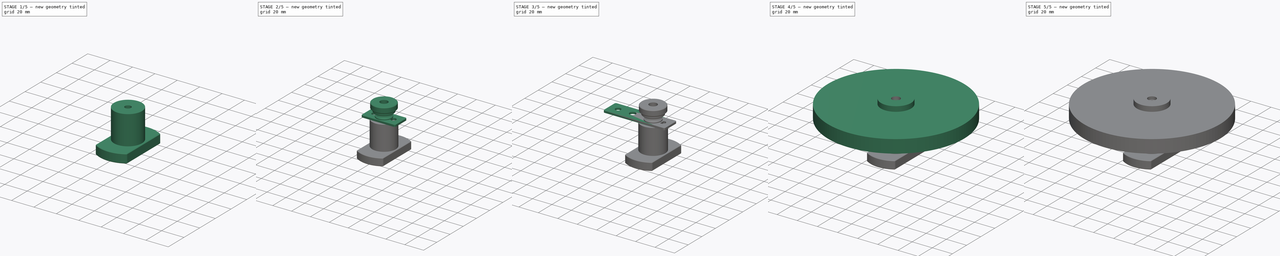
[diagram: build sequence overview — one tinted view per stage of 5, left to right]
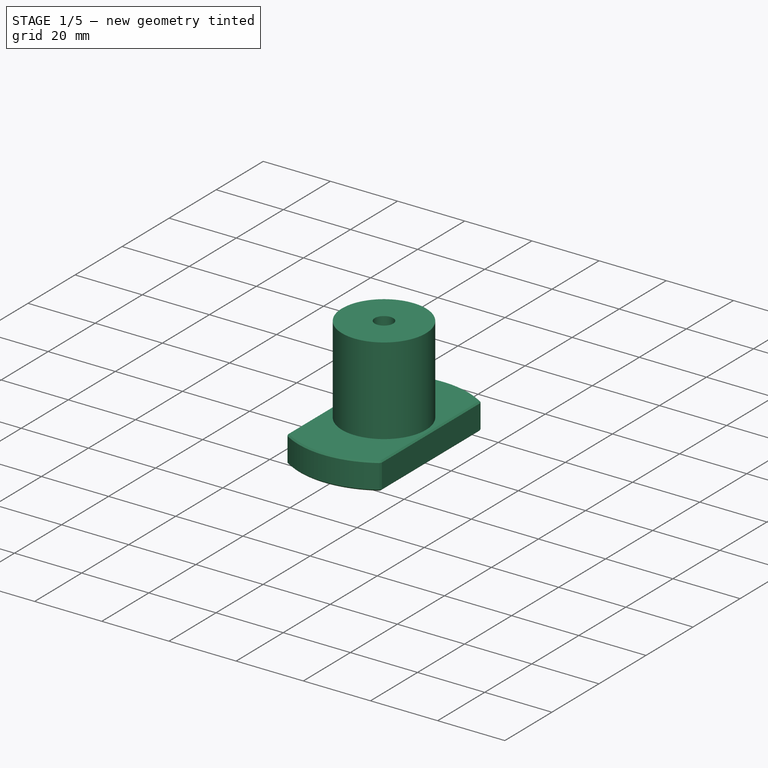
[diagram: stage 1 of 5 — iso view after this stage's code; geometry added in this stage tinted green]
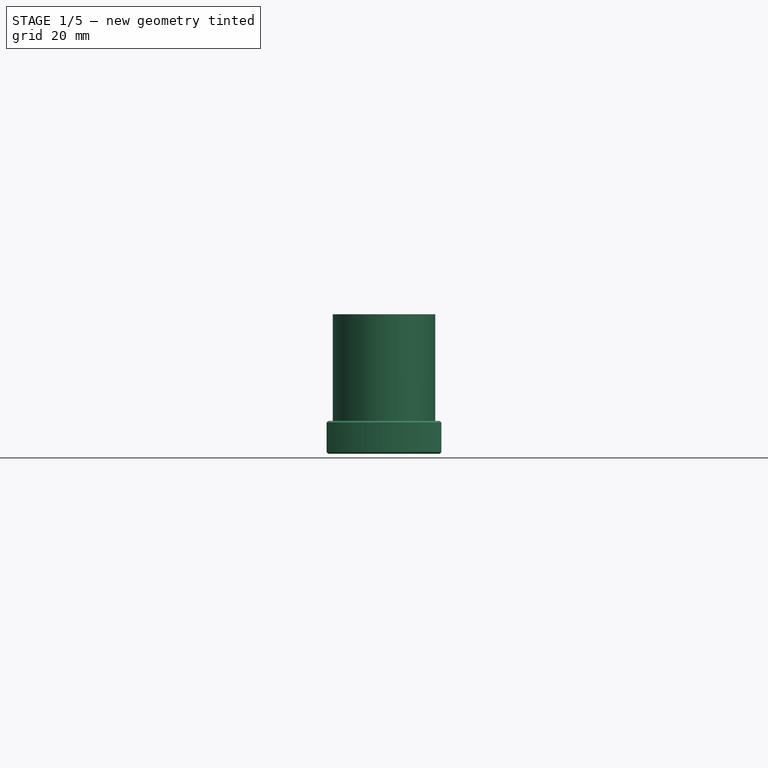
[diagram: stage 1 of 5 — front view after this stage's code; geometry added in this stage tinted green]
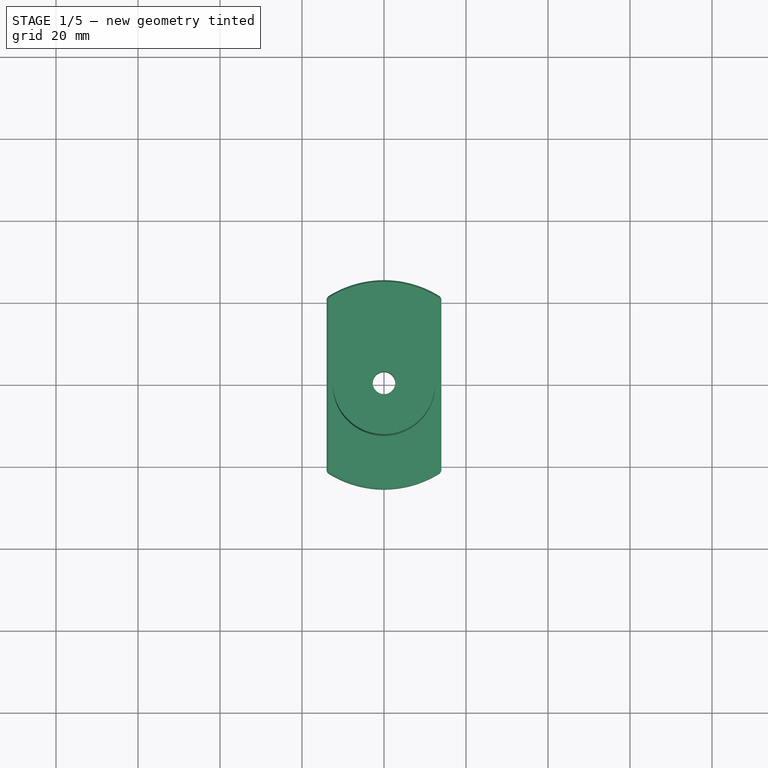
[diagram: stage 1 of 5 — top view after this stage's code; geometry added in this stage tinted green]
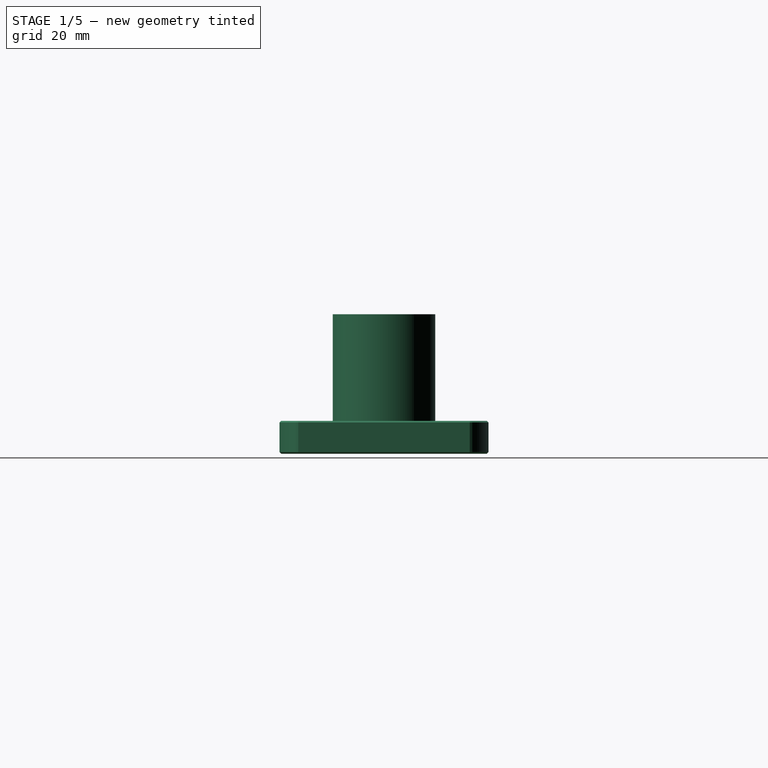
[diagram: stage 1 of 5 — right view after this stage's code; geometry added in this stage tinted green]
FCSTD DOCUMENT  (FreeCAD 0.21RUnknown)
Label: Common
License: All rights reserved
LicenseURL: http://en.wikipedia.org/wiki/All_rights_reserved
objects: PartDesign::CoordinateSystem×31, PartDesign::Body×22, Sketcher::SketchObject×19, PartDesign::Revolution×10, Part::Feature×7, PartDesign::FeatureBase×7, PartDesign::Pocket×3, PartDesign::Pad×2, App::DocumentObjectGroup×2, Spreadsheet::Sheet×1, PartDesign::AdditiveCylinder×1, PartDesign::SubtractiveCylinder×1, PartDesign::Chamfer×1
note: 122 computed .brp shape members not serialized (recipe doc carries the construction recipe); baked Part::Feature solids carry a one-line shape summary decoded from their .brp

FEATURE [PartDesign::CoordinateSystem] Local_CS197  label="LCS_CollKnob_Nut"
  AttacherType = Attacher::AttachEngine3D
  AttachmentOffset = pos=(0,0,0) rot=(0,0,1;1.5708rad)
  MapMode = 11
  Placement = pos=(-4e-16,0,3) rot=(0,0,1;3.14159rad)
  Support = -> [BaseFeature006]
FEATURE [PartDesign::CoordinateSystem] Local_CS198  label="LCS_CollKnob_Base"
  AttacherType = Attacher::AttachEngine3D
  MapMode = 11
  Placement = pos=(-4e-16,0,0) rot=(0,0,1;1.5708rad)
  Support = -> [BaseFeature006]
FEATURE [PartDesign::Body] Body022014  label="CollKnob6"
  BaseFeature = -> Part__Feature006
  Group = -> [BaseFeature006,Local_CS197,Local_CS198]
  Origin = -> Origin067
  Tip = -> BaseFeature006
FEATURE [Sketcher::SketchObject] Sketch103  label="CounterWeightClamp_Profile_Sketch"
  FullyConstrained = true
  MapMode = 5
  Placement = pos=(0,0,0) rot=(0.57735,0.57735,0.57735;2.0944rad)
  Support = -> [YZ_Plane072]
  expr: Constraints[11] = 5 * 1.1 / 2
  expr: Constraints[17] = 2 * (14 - 12.5) + 10
  sketch-geometry (6):
    g0: LineSegment StartX=2.75 StartY=0 StartZ=0 EndX=12.5 EndY=0 EndZ=0
    g1: LineSegment StartX=12.5 StartY=0 StartZ=0 EndX=12.5 EndY=-26 EndZ=0
    g2: LineSegment StartX=12.5 StartY=-26 StartZ=0 EndX=25.5 EndY=-26 EndZ=0
    g3: LineSegment StartX=25.5 StartY=-26 StartZ=0 EndX=25.5 EndY=-34 EndZ=0
    g4: LineSegment StartX=25.5 StartY=-34 StartZ=0 EndX=2.75 EndY=-34 EndZ=0
    g5: LineSegment StartX=2.75 StartY=-34 StartZ=0 EndX=2.75 EndY=0 EndZ=0
  constraints (18):
    c: Coincident(g1,g0)
    c: Vertical(g1)
    c: Coincident(g2,g1)
    c: Horizontal(g2)
    c: Coincident(g3,g2)
    c: Vertical(g3)
    c: Coincident(g4,g3)
    c: Horizontal(g4)
    c: Coincident(g5,g4)
    c: DistanceY(g3,g3) = 8
    c: Coincident(g5,g0)
    c: DistanceX(g0) = 2.75
    c: Horizontal(g0)
    c: Vertical(g5)
    c: DistanceY(g1) = -26
    c: PointOnObject(g0,g-1)
    c: DistanceX(g0) = 12.5
    c: DistanceX(g2,g2) = 13
FEATURE [PartDesign::Revolution] Revolution002  label="CounterWeightClamp_Base"
  Angle = 360
  Axis = (-3e-16,3e-16,1)
  Base = (0,0,0)
  Placement = pos=(0,0,0) rot=(0.57735,0.57735,0.57735;2.0944rad)
  Profile = -> Sketch103
  ReferenceAxis = -> Z_Axis072
  Reversed = true
FEATURE [Sketcher::SketchObject] Sketch104  label="CounterWeightClamp_Groove_Sketch"
  FullyConstrained = true
  MapMode = 5
  Placement = pos=(0,0,0) rot=(0.57735,0.57735,0.57735;2.0944rad)
  Support = -> [YZ_Plane072]
  sketch-geometry (8):
    g0: LineSegment StartX=2.9 StartY=0 StartZ=0 EndX=15 EndY=0 EndZ=0
    g1: LineSegment StartX=15 StartY=0 StartZ=0 EndX=15 EndY=10 EndZ=0
    g2: LineSegment StartX=15 StartY=10 StartZ=0 EndX=-15 EndY=10 EndZ=0
    g3: LineSegment StartX=-15 StartY=10 StartZ=0 EndX=-15 EndY=0 EndZ=0
    g4: LineSegment StartX=-15 StartY=0 StartZ=0 EndX=-2.9 EndY=0 EndZ=0
    g5: LineSegment StartX=-2.9 StartY=0 StartZ=0 EndX=-2.9 EndY=6 EndZ=0
    g6: LineSegment StartX=-2.9 StartY=6 StartZ=0 EndX=2.9 EndY=6 EndZ=0
    g7: LineSegment StartX=2.9 StartY=6 StartZ=0 EndX=2.9 EndY=0 EndZ=0
  constraints (23):
    c: PointOnObject(g0,g-1)
    c: PointOnObject(g0,g-1)
    c: Coincident(g1,g0)
    c: Vertical(g1)
    c: Coincident(g2,g1)
    c: Horizontal(g2)
    c: Coincident(g3,g2)
    c: PointOnObject(g3,g-1)
    c: Vertical(g3)
    c: Coincident(g4,g3)
    c: PointOnObject(g4,g-1)
    c: Coincident(g5,g4)
    c: Vertical(g5)
    c: Coincident(g6,g5)
    c: Coincident(g7,g6)
    c: Coincident(g7,g0)
    c: Vertical(g7)
    c: Symmetric(g6,g5,g-2)
    c: Equal(g0,g4)
    c: DistanceX(g2,g2) = 30
    c: DistanceY(g7,g7) = 6
    c: DistanceY(g1,g1) = 10
    c: DistanceX(g6,g6) = 5.8
FEATURE [PartDesign::CoordinateSystem] Local_CS209  label="LCS_CounterWeightClamp_Attachment"
  AttacherType = Attacher::AttachEngine3D
  MapMode = 11
  Placement = pos=(0,0,-3e-16) rot=(1,0,0;3.14159rad)
  Support = -> [Revolution002]
FEATURE [PartDesign::CoordinateSystem] Local_CS211  label="LCS_CounterWeightClamp_CWBase"
  AttacherType = Attacher::AttachEngine3D
  MapMode = 11
  Placement = pos=(1.44e-14,-8.9e-15,-26) rot=(0,0,1;3.14159rad)
  Support = -> [Revolution002]
FEATURE [PartDesign::CoordinateSystem] Local_CS218  label="LCS_Counterweight_Base"
  AttacherType = Attacher::AttachEngine3D
  MapMode = 11
  Placement = pos=(0,0,13) rot=(0.707107,-0.707107,0;3.14159rad)
  Support = -> [Cylinder002]
FEATURE [PartDesign::Body] Body017  label="CounterWeight"
  Group = -> [Cylinder,Cylinder002,Local_CS218]
  Origin = -> Origin029
  Placement = pos=(0,92,-87) rot=(1,0,0;0rad)
  Tip = -> Cylinder002
  expr: .Placement.Base.y = <<Parameters>>.collpos_y
  expr: .Placement.Base.z = <<Parameters>>.datum_lowercell - 10 - 15
FEATURE [Sketcher::SketchObject] Sketch141  label="CounterWeightClamp_Knurl_Sketch"
  FullyConstrained = true
  MapMode = 5
  Placement = pos=(1.9e-14,-1.12e-14,-34) rot=(0.707107,0.707107,0;3.14159rad)
  Support = -> [Revolution002]
  expr: Constraints[22] = 12.5 + 13
  sketch-geometry (39):
    g0: Circle CenterX=0 CenterY=0 CenterZ=0 NormalX=0 NormalY=0 NormalZ=1 AngleXU=0 Radius=20
    g1: ArcOfCircle CenterX=0 CenterY=20 CenterZ=0 NormalX=0 NormalY=0 NormalZ=1 AngleXU=0 Radius=5.5 StartAngle=0.446696 EndAngle=2.6949
    g2: ArcOfCircle CenterX=17.3205 CenterY=10 CenterZ=0 NormalX=0 NormalY=0 NormalZ=1 AngleXU=0 Radius=5.5 StartAngle=5.68268 EndAngle=7.93088
    g3: ArcOfCircle CenterX=20 CenterY=0 CenterZ=0 NormalX=0 NormalY=0 NormalZ=1 AngleXU=0 Radius=5.5 StartAngle=5.15908 EndAngle=7.40729
    g4: ArcOfCircle CenterX=17.3205 CenterY=-10 CenterZ=0 NormalX=0 NormalY=0 NormalZ=1 AngleXU=0 Radius=5.5 StartAngle=4.63549 EndAngle=6.88369
    g5: ArcOfCircle CenterX=0 CenterY=-20 CenterZ=0 NormalX=0 NormalY=0 NormalZ=1 AngleXU=0 Radius=5.5 StartAngle=3.58829 EndAngle=5.83649
    g6: ArcOfCircle CenterX=-17.3205 CenterY=-10 CenterZ=0 NormalX=0 NormalY=0 NormalZ=1 AngleXU=0 Radius=5.5 StartAngle=2.54109 EndAngle=4.78929
    g7: ArcOfCircle CenterX=-20 CenterY=0 CenterZ=0 NormalX=0 NormalY=0 NormalZ=1 AngleXU=0 Radius=5.5 StartAngle=2.01749 EndAngle=4.26569
    g8: ArcOfCircle CenterX=-17.3205 CenterY=10 CenterZ=0 NormalX=0 NormalY=0 NormalZ=1 AngleXU=0 Radius=5.5 StartAngle=1.49389 EndAngle=3.74209
    g9: Circle CenterX=0 CenterY=0 CenterZ=0 NormalX=0 NormalY=0 NormalZ=1 AngleXU=0 Radius=25.5
    g10: ArcOfCircle CenterX=10 CenterY=17.3205 CenterZ=0 NormalX=0 NormalY=0 NormalZ=1 AngleXU=0 Radius=5.5 StartAngle=6.20628 EndAngle=8.45448
    g11: ArcOfCircle CenterX=-10 CenterY=17.3205 CenterZ=0 NormalX=0 NormalY=0 NormalZ=1 AngleXU=0 Radius=5.5 StartAngle=0.970294 EndAngle=3.2185
    g12: ArcOfCircle CenterX=10 CenterY=-17.3205 CenterZ=0 NormalX=0 NormalY=0 NormalZ=1 AngleXU=0 Radius=5.5 StartAngle=4.11189 EndAngle=6.36009
    g13: ArcOfCircle CenterX=-10 CenterY=-17.3205 CenterZ=0 NormalX=0 NormalY=0 NormalZ=1 AngleXU=0 Radius=5.5 StartAngle=3.06469 EndAngle=5.31289
    g14: LineSegment StartX=0 StartY=20 StartZ=0 EndX=-10 EndY=17.3205 EndZ=0
    g15: LineSegment StartX=-10 StartY=17.3205 StartZ=0 EndX=-17.3205 EndY=10 EndZ=0
    g16: LineSegment StartX=-17.3205 StartY=10 StartZ=0 EndX=-20 EndY=0 EndZ=0
    g17: LineSegment StartX=-20 StartY=0 StartZ=0 EndX=-17.3205 EndY=-10 EndZ=0
    g18: LineSegment StartX=-17.3205 StartY=-10 StartZ=0 EndX=-10 EndY=-17.3205 EndZ=0
    g19: LineSegment StartX=-10 StartY=-17.3205 StartZ=0 EndX=0 EndY=-20 EndZ=0
    g20: LineSegment StartX=0 StartY=-20 StartZ=0 EndX=10 EndY=-17.3205 EndZ=0
    g21: LineSegment StartX=10 StartY=-17.3205 StartZ=0 EndX=17.3205 EndY=-10 EndZ=0
    g22: LineSegment StartX=17.3205 StartY=-10 StartZ=0 EndX=20 EndY=0 EndZ=0
    g23: LineSegment StartX=20 StartY=0 StartZ=0 EndX=17.3205 EndY=10 EndZ=0
    g24: LineSegment StartX=17.3205 StartY=10 StartZ=0 EndX=10 EndY=17.3205 EndZ=0
    g25: LineSegment StartX=10 StartY=17.3205 StartZ=0 EndX=0 EndY=20 EndZ=0
    g26: ArcOfCircle CenterX=0 CenterY=0 CenterZ=0 NormalX=0 NormalY=0 NormalZ=1 AngleXU=0 Radius=22.9191 StartAngle=1.78895 EndAngle=1.87624
    g27: ArcOfCircle CenterX=0 CenterY=0 CenterZ=0 NormalX=0 NormalY=0 NormalZ=1 AngleXU=0 Radius=22.9191 StartAngle=1.26535 EndAngle=1.35264
    g28: ArcOfCircle CenterX=0 CenterY=0 CenterZ=0 NormalX=0 NormalY=0 NormalZ=1 AngleXU=0 Radius=22.9191 StartAngle=0.741753 EndAngle=0.829044
    g29: ArcOfCircle CenterX=0 CenterY=0 CenterZ=0 NormalX=0 NormalY=0 NormalZ=1 AngleXU=0 Radius=22.9191 StartAngle=0.218154 EndAngle=0.305445
    g30: ArcOfCircle CenterX=0 CenterY=0 CenterZ=0 NormalX=0 NormalY=0 NormalZ=1 AngleXU=0 Radius=22.9191 StartAngle=5.97774 EndAngle=6.06503
    g31: ArcOfCircle CenterX=0 CenterY=0 CenterZ=0 NormalX=0 NormalY=0 NormalZ=1 AngleXU=0 Radius=22.9191 StartAngle=5.45414 EndAngle=5.54143
    g32: ArcOfCircle CenterX=0 CenterY=0 CenterZ=0 NormalX=0 NormalY=0 NormalZ=1 AngleXU=0 Radius=22.9191 StartAngle=2.31255 EndAngle=2.39984
    g33: ArcOfCircle CenterX=0 CenterY=0 CenterZ=0 NormalX=0 NormalY=0 NormalZ=1 AngleXU=0 Radius=22.9191 StartAngle=2.83615 EndAngle=2.92344
    g34: ArcOfCircle CenterX=0 CenterY=0 CenterZ=0 NormalX=0 NormalY=0 NormalZ=1 AngleXU=0 Radius=22.9191 StartAngle=3.35975 EndAngle=3.44704
    g35: ArcOfCircle CenterX=0 CenterY=0 CenterZ=0 NormalX=0 NormalY=0 NormalZ=1 AngleXU=0 Radius=22.9191 StartAngle=3.88335 EndAngle=3.97064
    g36: ArcOfCircle CenterX=0 CenterY=0 CenterZ=0 NormalX=0 NormalY=0 NormalZ=1 AngleXU=0 Radius=22.9191 StartAngle=4.40694 EndAngle=4.49424
    g37: ArcOfCircle CenterX=0 CenterY=0 CenterZ=0 NormalX=0 NormalY=0 NormalZ=1 AngleXU=0 Radius=22.9191 StartAngle=4.93054 EndAngle=5.01783
    g38: Circle CenterX=0 CenterY=0 CenterZ=0 NormalX=0 NormalY=0 NormalZ=1 AngleXU=0 Radius=30
  constraints (114):
    c: Coincident(g0,g-1)
    c: PointOnObject(g1,g0)
    c: PointOnObject(g2,g0)
    c: PointOnObject(g3,g0)
    c: PointOnObject(g4,g0)
    c: PointOnObject(g5,g0)
    c: PointOnObject(g6,g0)
    c: PointOnObject(g7,g0)
    c: PointOnObject(g8,g0)
    c: Equal(g8,g1)
    c: Equal(g1,g2)
    c: Equal(g2,g3)
    c: Equal(g3,g4)
    c: Equal(g4,g5)
    c: Equal(g5,g6)
    c: Equal(g6,g7)
    c: Radius(g0) = 20
    c: PointOnObject(g1,g-2)
    c: PointOnObject(g3,g-1)
    c: PointOnObject(g5,g-2)
    c: PointOnObject(g7,g-1)
    c: Coincident(g9,g-1)
    c: Radius(g9) = 25.5
    c: Tangent(g1,g9)
    c: PointOnObject(g10,g0)
    c: PointOnObject(g11,g0)
    c: PointOnObject(g12,g0)
    c: PointOnObject(g13,g0)
    c: Coincident(g14,g1)
    c: Coincident(g14,g11)
    c: Coincident(g15,g11)
    c: Coincident(g15,g8)
    c: Coincident(g16,g8)
    c: Coincident(g16,g7)
    c: Coincident(g17,g7)
    c: Coincident(g17,g6)
    c: Coincident(g18,g6)
    c: Coincident(g18,g13)
    c: Coincident(g19,g13)
    c: Coincident(g19,g5)
    c: Coincident(g20,g5)
    c: Coincident(g20,g12)
    c: Coincident(g21,g12)
    c: Coincident(g21,g4)
    c: Coincident(g22,g3)
    c: Coincident(g23,g3)
    c: Coincident(g23,g2)
    c: Coincident(g24,g2)
    c: Coincident(g24,g10)
    c: Coincident(g25,g10)
    c: Coincident(g25,g1)
    c: Equal(g14,g25)
    c: Equal(g25,g24)
    c: Equal(g24,g23)
    c: Equal(g23,g22)
    c: Equal(g22,g21)
    c: Equal(g20,g19)
    c: Equal(g19,g18)
    c: Equal(g17,g16)
    c: Coincident(g22,g4)
    c: Equal(g11,g1)
    c: Equal(g10,g1)
    c: Equal(g12,g4)
    c: Equal(g13,g6)
    c: Coincident(g26,g-1)
    c: Coincident(g26,g1)
    c: Coincident(g26,g11)
    c: Coincident(g27,g26)
    c: Coincident(g27,g1)
    c: Coincident(g27,g10)
    c: Coincident(g28,g26)
    c: Coincident(g28,g10)
    c: Coincident(g28,g2)
    c: Equal(g26,g27)
    c: Equal(g28,g27)
    c: Coincident(g29,g26)
    c: Coincident(g29,g2)
    c: Coincident(g29,g3)
    c: Coincident(g30,g26)
    c: Coincident(g30,g3)
    c: Coincident(g30,g4)
    c: Coincident(g31,g26)
    c: Coincident(g31,g4)
    c: Coincident(g31,g12)
    c: Equal(g28,g29)
    c: Equal(g29,g30)
    c: Equal(g30,g31)
    c: Coincident(g32,g26)
    c: Coincident(g32,g11)
    c: Coincident(g32,g8)
    c: Coincident(g33,g26)
    c: Coincident(g33,g8)
    c: Coincident(g33,g7)
    c: Coincident(g34,g26)
    c: Coincident(g34,g7)
    c: Coincident(g34,g6)
    c: Equal(g32,g33)
    c: Equal(g33,g34)
    c: Equal(g34,g26)
    c: Coincident(g35,g26)
    c: Coincident(g35,g6)
    c: Coincident(g35,g13)
    c: Coincident(g36,g26)
    c: Coincident(g36,g13)
    c: Coincident(g36,g5)
    c: Coincident(g37,g26)
    c: Coincident(g37,g5)
    c: Coincident(g37,g12)
    c: Equal(g35,g36)
    c: Equal(g36,g37)
    c: Equal(g37,g31)
    c: Distance(g11,g1) = 2
    c: Coincident(g38,g26)
    c: Radius(g38) = 30
FEATURE [Sketcher::SketchObject] Sketch142  label="CounterWeightClamp_Nut_Sketch"
  AttachmentOffset = pos=(0,0,-12) rot=(0,0,1;0rad)
  FullyConstrained = true
  MapMode = 5
  Placement = pos=(0,0,-12) rot=(0,0,1;0rad)
  Support = -> [XY_Plane072]
  sketch-geometry (7):
    g0: LineSegment StartX=4.2 StartY=2.42487 StartZ=0 EndX=1.927e-13 EndY=4.84974 EndZ=0
    g1: LineSegment StartX=1.927e-13 StartY=4.84974 StartZ=0 EndX=-4.2 EndY=2.42487 EndZ=0
    g2: LineSegment StartX=-4.2 StartY=2.42487 StartZ=0 EndX=-4.2 EndY=-2.42487 EndZ=0
    g3: LineSegment StartX=-4.2 StartY=-2.42487 StartZ=0 EndX=1.066e-13 EndY=-4.84974 EndZ=0
    g4: LineSegment StartX=1.066e-13 StartY=-4.84974 StartZ=0 EndX=4.2 EndY=-2.42487 EndZ=0
    g5: LineSegment StartX=4.2 StartY=-2.42487 StartZ=0 EndX=4.2 EndY=2.42487 EndZ=0
    g6: Circle CenterX=0 CenterY=0 CenterZ=0 NormalX=0 NormalY=0 NormalZ=1 AngleXU=0 Radius=4.84974
  constraints (16):
    c: Coincident(g0,g1)
    c: Coincident(g1,g2)
    c: Coincident(g2,g3)
    c: Coincident(g3,g4)
    c: Coincident(g4,g5)
    c: Coincident(g5,g0)
    c: Equal(g0, g1-g5) x5
    c: PointOnObject(g0,g6)
    c: PointOnObject(g1,g6)
    c: PointOnObject(g2,g6)
    c: PointOnObject(g3,g6)
    c: PointOnObject(g4,g6)
    c: PointOnObject(g5,g6)
    c: Coincident(g6,g-1)
    c: Vertical(g5)
    c: DistanceX(g1,g0) = 8.4
FEATURE [Sketcher::SketchObject] Sketch151  label="CounterWeightClamp_Shape_Sketch"
  FullyConstrained = true
  MapMode = 5
  Placement = pos=(1.9e-14,-1.12e-14,-34) rot=(0.707107,0.707107,0;3.14159rad)
  Support = -> [Revolution002]
  expr: Constraints[12] = 28
  expr: Constraints[8] = 60
  sketch-geometry (9):
    g0: LineSegment StartX=-26.533 StartY=14 StartZ=0 EndX=26.533 EndY=14 EndZ=0
    g1: LineSegment StartX=26.533 StartY=14 StartZ=0 EndX=26.533 EndY=-14 EndZ=0
    g2: LineSegment StartX=26.533 StartY=-14 StartZ=0 EndX=-26.533 EndY=-14 EndZ=0
    g3: LineSegment StartX=-26.533 StartY=-14 StartZ=0 EndX=-26.533 EndY=14 EndZ=0
    g4: Circle CenterX=0 CenterY=0 CenterZ=0 NormalX=0 NormalY=0 NormalZ=1 AngleXU=0 Radius=30
    g5: LineSegment StartX=-32.5 StartY=32.5 StartZ=0 EndX=32.5 EndY=32.5 EndZ=0
    g6: LineSegment StartX=32.5 StartY=32.5 StartZ=0 EndX=32.5 EndY=-32.5 EndZ=0
    g7: LineSegment StartX=32.5 StartY=-32.5 StartZ=0 EndX=-32.5 EndY=-32.5 EndZ=0
    g8: LineSegment StartX=-32.5 StartY=-32.5 StartZ=0 EndX=-32.5 EndY=32.5 EndZ=0
  constraints (23):
    c: Coincident(g0,g1)
    c: Coincident(g1,g2)
    c: Coincident(g2,g3)
    c: Coincident(g3,g0)
    c: Horizontal(g2)
    c: Vertical(g1)
    c: Vertical(g3)
    c: Coincident(g4,g-1)
    c: Diameter(g4) = 60
    c: PointOnObject(g0,g4)
    c: PointOnObject(g1,g4)
    c: Symmetric(g0,g0,g-2)
    c: DistanceY(g1,g1) = 28
    c: Coincident(g5,g6)
    c: Coincident(g6,g7)
    c: Coincident(g7,g8)
    c: Coincident(g8,g5)
    c: Horizontal(g7)
    c: Vertical(g8)
    c: Equal(g6,g5)
    c: Symmetric(g5,g5,g-2)
    c: Symmetric(g5,g6,g-1)
    c: DistanceY(g6,g6) = 65
FEATURE [PartDesign::Pocket] Pocket099  label="CounterWeightClamp_Shape"
  BaseFeature = -> Revolution002
  Direction = (-7e-16,4e-16,1)
  Length = 5
  Length2 = 100
  Placement = pos=(0,0,0) rot=(0.57735,0.57735,0.57735;2.0944rad)
  Profile = -> Sketch151
  Type = 1
FEATURE [PartDesign::Pocket] Pocket100  label="CounterWeightClamp_Nut"
  BaseFeature = -> Pocket099
  Direction = (0,0,-1)
  Length = 18
  Length2 = 100
  Placement = pos=(0,0,0) rot=(0.57735,0.57735,0.57735;2.0944rad)
  Profile = -> Sketch142
  ReferenceAxis = -> Sketch142 [N_Axis]
  Type = 1
FEATURE [PartDesign::CoordinateSystem] Local_CS318  label="Insert_M4_Face"
  AttacherType = Attacher::AttachEngine3D
  MapMode = 11
  Placement = pos=(0,0,4) rot=(-0.707107,0.707107,0;3.14159rad)
  Support = -> [BaseFeature009]
FEATURE [PartDesign::Body] Body022061  label="Insert_M4_Short"
  BaseFeature = -> Part__Feature007
  Group = -> [BaseFeature009,Local_CS318]
  Origin = -> Origin115
  Tip = -> BaseFeature009
FEATURE [Sketcher::SketchObject] Sketch289  label="UpperHub_MasterSketch001"
  FullyConstrained = true
  MapMode = 5
  Support = -> [XY_Plane116]
  expr: Constraints[1] = <<Parameters>>.pri_poledia + <<Parameters>>.sec_fthick * 2
  expr: Constraints[21] = <<Parameters>>.sec_sidebolt * 1.5
  expr: Constraints[23] = <<Parameters>>.sec_hubdia
  expr: Constraints[26] = <<Parameters>>.sec_poledia + <<Parameters>>.sec_clamptol
  expr: Constraints[29] = <<Parameters>>.sec_collbolt
  expr: Constraints[32] = <<Parameters>>.sec_cpointpos
  expr: Constraints[33] = <<Parameters>>.sec_poledia / 2 - <<Parameters>>.sec_spthick
  expr: Constraints[35] = <<Parameters>>.bolt_y - <<Parameters>>.pri_poledia / 2
  expr: Constraints[3] = <<Parameters>>.bolt_x + <<Parameters>>.sec_offset_x
  expr: Constraints[4] = <<Parameters>>.bolt_y
  expr: Constraints[61] = -<<Parameters>>.bolt_x + <<Parameters>>.sec_offset_x
  expr: Constraints[64] = <<Parameters>>.sec_intloop
  expr: Constraints[65] = <<Parameters>>.sec_offset_x
  expr: Constraints[70] = <<Parameters>>.sec_toparc_angle
  expr: Constraints[79] = <<Parameters>>.sec_zrotmax
  expr: Constraints[87] = <<Parameters>>.sec_collbolt
  expr: Constraints[88] = <<Parameters>>.sec_fillet
  sketch-geometry (34):
    g0: Circle CenterX=116.125 CenterY=113 CenterZ=0 NormalX=0 NormalY=0 NormalZ=1 AngleXU=0 Radius=13
    g1: Circle CenterX=116.125 CenterY=-113 CenterZ=0 NormalX=0 NormalY=0 NormalZ=1 AngleXU=0 Radius=13
    g2: LineSegment StartX=-23.7451 StartY=0 StartZ=0 EndX=102.255 EndY=126 EndZ=0
    g3: LineSegment StartX=-23.7451 StartY=0 StartZ=0 EndX=102.255 EndY=-126 EndZ=0
    g4: LineSegment StartX=116.125 StartY=126 StartZ=0 EndX=102.255 EndY=126 EndZ=0
    g5: LineSegment StartX=116.125 StartY=-126 StartZ=0 EndX=102.255 EndY=-126 EndZ=0
    g6: LineSegment StartX=102.69 StartY=126.435 StartZ=0 EndX=116.125 EndY=113 EndZ=0
    g7: GeomPoint X=106.933 Y=122.192 Z=0
    g8: Circle CenterX=0 CenterY=0 CenterZ=0 NormalX=0 NormalY=0 NormalZ=1 AngleXU=0 Radius=20
    g9: Circle CenterX=116.125 CenterY=113 CenterZ=0 NormalX=0 NormalY=0 NormalZ=1 AngleXU=0 Radius=9.35
    g10: Circle CenterX=116.125 CenterY=-113 CenterZ=0 NormalX=0 NormalY=0 NormalZ=1 AngleXU=0 Radius=9.35
    g11: Circle CenterX=-12 CenterY=0 CenterZ=0 NormalX=0 NormalY=0 NormalZ=1 AngleXU=0 Radius=2
    g12: Circle CenterX=12 CenterY=0 CenterZ=0 NormalX=0 NormalY=0 NormalZ=1 AngleXU=0 Radius=2
    g13: LineSegment StartX=124.125 StartY=103 StartZ=0 EndX=124.125 EndY=-103 EndZ=0
    g14: LineSegment StartX=103.125 StartY=113 StartZ=0 EndX=129.125 EndY=113 EndZ=0
    g15: LineSegment StartX=103.125 StartY=-113 StartZ=0 EndX=129.125 EndY=-113 EndZ=0
    g16: LineSegment StartX=103.125 StartY=113 StartZ=0 EndX=103.125 EndY=-113 EndZ=0
    g17: LineSegment StartX=129.125 StartY=-113 StartZ=0 EndX=129.125 EndY=113 EndZ=0
    g18: LineSegment StartX=-4.18858 StartY=19.5565 StartZ=0 EndX=-4.18858 EndY=-19.5565 EndZ=0
    g19: GeomPoint X=116.125 Y=139.87 Z=0
    g20: LineSegment StartX=116.125 StartY=113 StartZ=0 EndX=116.125 EndY=139.87 EndZ=0
    g21: Circle CenterX=-109.875 CenterY=0 CenterZ=0 NormalX=0 NormalY=0 NormalZ=1 AngleXU=0 Radius=9.35
    g22: Circle CenterX=-109.875 CenterY=0 CenterZ=0 NormalX=0 NormalY=0 NormalZ=1 AngleXU=0 Radius=13
    g23: Circle CenterX=3.125 CenterY=0 CenterZ=0 NormalX=0 NormalY=0 NormalZ=1 AngleXU=0 Radius=115
    g24: LineSegment StartX=3.125 StartY=0 StartZ=0 EndX=-62.8363 EndY=94.2025 EndZ=0
    g25: LineSegment StartX=3.125 StartY=0 StartZ=0 EndX=-62.8363 EndY=-94.2025 EndZ=0
    g26: ArcOfCircle CenterX=0 CenterY=0 CenterZ=0 NormalX=0 NormalY=0 NormalZ=1 AngleXU=0 Radius=8.05894 StartAngle=2.92343 EndAngle=3.35976
    g27: ArcOfCircle CenterX=3.125 CenterY=0 CenterZ=0 NormalX=0 NormalY=0 NormalZ=1 AngleXU=0 Radius=15.125 StartAngle=2.96816 EndAngle=3.31502
    g28: LineSegment StartX=-11.7731 StartY=2.61003 StartZ=0 EndX=0 EndY=0 EndZ=0
    g29: LineSegment StartX=-11.7731 StartY=-2.61003 StartZ=0 EndX=0 EndY=0 EndZ=0
    g30: ArcOfCircle CenterX=-11.7731 CenterY=2.61003 CenterZ=0 NormalX=0 NormalY=0 NormalZ=1 AngleXU=0 Radius=4 StartAngle=6.06502 EndAngle=7.94739
    g31: ArcOfCircle CenterX=-11.7731 CenterY=-2.61003 CenterZ=0 NormalX=0 NormalY=0 NormalZ=1 AngleXU=0 Radius=4 StartAngle=4.61898 EndAngle=6.50135
    g32: ArcOfCircle CenterX=-12.3328 CenterY=8.58387 CenterZ=0 NormalX=0 NormalY=0 NormalZ=1 AngleXU=0 Radius=2 StartAngle=2.35619 EndAngle=4.8058
    g33: ArcOfCircle CenterX=-12.3328 CenterY=-8.58387 CenterZ=0 NormalX=0 NormalY=0 NormalZ=1 AngleXU=0 Radius=2 StartAngle=1.47738 EndAngle=3.92699
  constraints (94):
    c: Equal(g1,g0)
    c: Diameter(g0) = 26
    c: Symmetric(g1,g0,g-1)
    c: DistanceX(g0) = 116.125
    c: DistanceY(g0) = 113
    c: PointOnObject(g2,g-1)
    c: Coincident(g3,g2)
    c: Perpendicular(g3,g2)
    c: PointOnObject(g4,g0)
    c: Coincident(g4,g2)
    c: Horizontal(g4)
    c: Tangent(g4,g0)
    c: PointOnObject(g5,g1)
    c: Horizontal(g5)
    c: Coincident(g5,g3)
    c: Symmetric(g3,g2,g-1)
    c: PointOnObject(g6,g2)
    c: Coincident(g6,g0)
    c: Perpendicular(g2,g6)
    c: PointOnObject(g7,g6)
    c: PointOnObject(g7,g0)
    c: Distance(g7,g6) = 6
    c: Coincident(g8,g-1)
    c: Diameter(g8) = 40
    c: Coincident(g9,g0)
    c: Coincident(g10,g1)
    c: Diameter(g10) = 18.7
    c: Equal(g10,g9)
    c: PointOnObject(g11,g-1)
    c: Diameter(g11) = 4
    c: Equal(g11,g12)
    c: Symmetric(g11,g12,g-2)
    c: DistanceX(g12) = 12
    c: DistanceX(g6,g13) = 8
    c: Symmetric(g13,g13,g-1)
    c: DistanceY(g13) = 103
    c: PointOnObject(g14,g0)
    c: PointOnObject(g14,g0)
    c: Horizontal(g14)
    c: PointOnObject(g15,g1)
    c: Horizontal(g15)
    c: PointOnObject(g1,g15)
    c: PointOnObject(g6,g14)
    c: Coincident(g16,g14)
    c: Coincident(g16,g15)
    c: Vertical(g16)
    c: Coincident(g17,g15)
    c: Coincident(g17,g14)
    c: PointOnObject(g18,g2)
    c: PointOnObject(g18,g3)
    c: Vertical(g18)
    c: PointOnObject(g18,g8)
    c: Distance(g2,g6) = 0.615224
    c: DistanceX(g2) = -23.7451
    c: PointOnObject(g19,g2)
    c: Coincident(g20,g0)
    c: Coincident(g20,g19)
    c: Vertical(g20)
    c: DistanceY(g19) = 139.87
    c: PointOnObject(g21,g-1)
    c: Coincident(g22,g21)
    c: DistanceX(g21) = -109.875
    c: Equal(g21,g10)
    c: Equal(g22,g1)
    c: Radius(g23) = 115
    c: DistanceX(g-1,g23) = 3.125
    c: Coincident(g24,g23)
    c: PointOnObject(g24,g23)
    c: Coincident(g25,g23)
    c: Symmetric(g24,g25,g-1)
    c: Angle(g24,g-1) = 0.959931
    c: DistanceY(g4) = 126
    c: Coincident(g26,g8)
    c: Coincident(g27,g23)
    c: Coincident(g28,g27)
    c: Coincident(g28,g8)
    c: Coincident(g29,g27)
    c: Coincident(g29,g8)
    c: Symmetric(g27,g27,g-1)
    c: Angle(g28,g29) = 0.436332
    c: Coincident(g30,g26)
    c: Coincident(g31,g27)
    c: Coincident(g31,g26)
    c: PointOnObject(g26,g28)
    c: PointOnObject(g26,g29)
    c: Coincident(g30,g27)
    c: PointOnObject(g11,g27)
    c: Radius(g30) = 4
    c: Radius(g32) = 2
    c: Tangent(g33,g3) = -1.5708
    c: Tangent(g33,g31) = 1.5708
    c: Tangent(g32,g2) = 1.5708
    c: Tangent(g32,g30) = 1.5708
    c: Equal(g33,g32)
FEATURE [PartDesign::Body] Body022062  label="MasterSketchUpperHub"
  Group = -> [Sketch289]
  Origin = -> Origin116
  Placement = pos=(-3.125,0,896) rot=(0,0,1;0rad)
  expr: .Placement.Base.x = -<<Common>>#<<Parameters>>.sec_offset_x
  expr: .Placement.Base.z = <<Common>>#<<Parameters>>.datum_sec_upperhub
FEATURE [Sketcher::SketchObject] Sketch290  label="RockerSide_MasterSketch001"
  FullyConstrained = true
  MapMode = 5
  Placement = pos=(0,0,0) rot=(0.57735,0.57735,0.57735;2.0944rad)
  Support = -> [YZ_Plane117]
  expr: Constraints[12] = <<Parameters>>.datum_lowercell - <<Parameters>>.datum_rocker_z
  expr: Constraints[13] = <<Parameters>>.bolt_y
  expr: Constraints[1] = <<Parameters>>.rail_dia
  expr: Constraints[2] = <<Parameters>>.datum_rocker_z - <<Parameters>>.datum_azbase
  expr: Constraints[33] = <<Parameters>>.rail_dia - <<Parameters>>.rail_height * 2
  expr: Constraints[6] = <<Parameters>>.bolt_y
  sketch-geometry (14):
    g0: Circle CenterX=0 CenterY=215 CenterZ=0 NormalX=0 NormalY=0 NormalZ=1 AngleXU=0 Radius=200
    g1: Circle CenterX=0 CenterY=0 CenterZ=0 NormalX=0 NormalY=0 NormalZ=1 AngleXU=0 Radius=2.5
    g2: Circle CenterX=-113 CenterY=0 CenterZ=0 NormalX=0 NormalY=0 NormalZ=1 AngleXU=0 Radius=3
    g3: Circle CenterX=113 CenterY=0 CenterZ=0 NormalX=0 NormalY=0 NormalZ=1 AngleXU=0 Radius=3
    g4: Circle CenterX=113 CenterY=30 CenterZ=0 NormalX=0 NormalY=0 NormalZ=1 AngleXU=0 Radius=2.5
    g5: Circle CenterX=-113 CenterY=30 CenterZ=0 NormalX=0 NormalY=0 NormalZ=1 AngleXU=0 Radius=2.5
    g6: Circle CenterX=-113 CenterY=70 CenterZ=0 NormalX=0 NormalY=0 NormalZ=1 AngleXU=0 Radius=2.5
    g7: Circle CenterX=0 CenterY=31.1686 CenterZ=0 NormalX=0 NormalY=0 NormalZ=1 AngleXU=0 Radius=2.5
    g8: Circle CenterX=113 CenterY=70 CenterZ=0 NormalX=0 NormalY=0 NormalZ=1 AngleXU=0 Radius=2.5
    g9: Circle CenterX=0 CenterY=215 CenterZ=0 NormalX=0 NormalY=0 NormalZ=1 AngleXU=0 Radius=183.831
    g10: GeomPoint X=113 Y=70 Z=0
    g11: LineSegment StartX=-113 StartY=0 StartZ=0 EndX=-113 EndY=70 EndZ=0
    g12: LineSegment StartX=113 StartY=0 StartZ=0 EndX=113 EndY=70 EndZ=0
    g13: Circle CenterX=0 CenterY=215 CenterZ=0 NormalX=0 NormalY=0 NormalZ=1 AngleXU=0 Radius=165
  constraints (34):
    c: PointOnObject(g0,g-2)
    c: Diameter(g0) = 400
    c: DistanceY(g0) = 215
    c: Coincident(g1,g-1)
    c: PointOnObject(g3,g-1)
    c: PointOnObject(g7,g-2)
    c: DistanceX(g3) = 113
    c: Symmetric(g3,g2,g-2)
    c: Diameter(g2) = 6
    c: Equal(g2,g3)
    c: Coincident(g9,g0)
    c: PointOnObject(g10,g9)
    c: DistanceY(g0,g10) = -145
    c: DistanceX(g0,g10) = 113
    c: Diameter(g1) = 5
    c: Coincident(g11,g2)
    c: PointOnObject(g11,g9)
    c: Coincident(g12,g3)
    c: PointOnObject(g12,g9)
    c: Vertical(g12)
    c: Vertical(g11)
    c: PointOnObject(g5,g11)
    c: Coincident(g6,g11)
    c: PointOnObject(g7,g9)
    c: Coincident(g8,g12)
    c: Equal(g4,g8)
    c: Equal(g8,g7)
    c: Equal(g7,g6)
    c: Equal(g6,g5)
    c: Equal(g5,g1)
    c: Symmetric(g4,g5,g-2)
    c: DistanceY(g4) = 30
    c: Coincident(g13,g0)
    c: Diameter(g13) = 330
FEATURE [PartDesign::Body] Body022063  label="MasterSketchRockerSide"
  Group = -> [Sketch290]
  Origin = -> Origin117
  Placement = pos=(135,0,-132) rot=(0,0,1;0rad)
  expr: .Placement.Base.x = <<Parameters>>.boxsize_x / 2 + <<Parameters>>.rail_width + 2
  expr: .Placement.Base.z = <<Parameters>>.datum_azbase
FEATURE [App::DocumentObjectGroup] Group006  label="MasterSketches"
  Group = -> [Body022062,Body022063]
FEATURE [Sketcher::SketchObject] Sketch  label="CounterWeightClamp_Nut_Support_Sketch"
  ExternalGeometry = -> [Pocket100]
  FullyConstrained = true
  MapMode = 5
  Placement = pos=(0,0,-12) rot=(0.707107,0.707107,0;3.14159rad)
  Support = -> [Pocket100]
  sketch-geometry (6):
    g0: LineSegment StartX=0.750555 StartY=4.2 StartZ=0 EndX=4.01258 EndY=-1.45 EndZ=0
    g1: LineSegment StartX=-3.26203 StartY=-2.75 StartZ=0 EndX=3.26203 EndY=-2.75 EndZ=0
    g2: LineSegment StartX=-4.01258 StartY=-1.45 StartZ=0 EndX=-0.750555 EndY=4.2 EndZ=0
    g3: LineSegment StartX=-0.750555 StartY=4.2 StartZ=0 EndX=0.750555 EndY=4.2 EndZ=0
    g4: LineSegment StartX=4.01258 StartY=-1.45 StartZ=0 EndX=3.26203 EndY=-2.75 EndZ=0
    g5: LineSegment StartX=-3.26203 StartY=-2.75 StartZ=0 EndX=-4.01258 EndY=-1.45 EndZ=0
  constraints (18):
    c: Horizontal(g1)
    c: Parallel(g-5,g0)
    c: Parallel(g2,g-6)
    c: Tangent(g2,g-3)
    c: Tangent(g0,g-3)
    c: Tangent(g-3,g1)
    c: PointOnObject(g1,g-6)
    c: PointOnObject(g0,g-6)
    c: PointOnObject(g0,g-4)
    c: PointOnObject(g2,g-4)
    c: PointOnObject(g2,g-5)
    c: PointOnObject(g1,g-5)
    c: Coincident(g3,g2)
    c: Coincident(g3,g0)
    c: Coincident(g4,g0)
    c: Coincident(g4,g1)
    c: Coincident(g5,g1)
    c: Coincident(g5,g2)
FEATURE [PartDesign::Pocket] Pocket  label="CounterWeightClamp_Nut_Support"
  BaseFeature = -> Pocket100
  Direction = (-3e-16,1e-16,1)
  Length = 0.2
  Length2 = 5
  Placement = pos=(0,0,0) rot=(0.57735,0.57735,0.57735;2.0944rad)
  Profile = -> Sketch
  ReferenceAxis = -> Sketch [N_Axis]
  Type = 0
FEATURE [PartDesign::Chamfer] Chamfer
  Angle = 45
  Base = -> Pocket [Face28,Edge21,Edge20,Edge19,Edge23,Edge22,Edge46,Edge44,Edge50,Edge48]
  BaseFeature = -> Pocket
  ChamferType = 0
  FlipDirection = false
  Placement = pos=(0,0,0) rot=(0.57735,0.57735,0.57735;2.0944rad)
  Size = 0.4
  Size2 = 1
  SupportTransform = false
  UseAllEdges = false
FEATURE [PartDesign::Body] Body022019  label="CounterWeightClamp"
  Group = -> [Sketch103,Revolution002,Sketch104,Local_CS209,Local_CS210,Local_CS211,Sketch141,Sketch142,Sketch151,Pocket099,Pocket100,Sketch,Pocket,Chamfer]
  Origin = -> Origin072
  Placement = pos=(0,92,-72) rot=(0,0,1;0rad)
  Tip = -> Chamfer
  expr: .Placement.Base.y = <<Parameters>>.collpos_y
  expr: .Placement.Base.z = <<Parameters>>.datum_lowercell - 10
FEATURE [App::DocumentObjectGroup] Group002  label="MiscParts"
  Group = -> [Part__Feature,Body038,Part__Feature001,Body039,Part__Feature002,Part__Feature003,Body022010,Part__Feature004,Body022011,Body022012,Body022014,Part__Feature006,Body022019,Body017,Body022030,Body022031,Body022032,Body003,Body005,Body004,Body022038,Body022037,Body022051,Body022053,Body022052,Part__Feature007,Body022061]
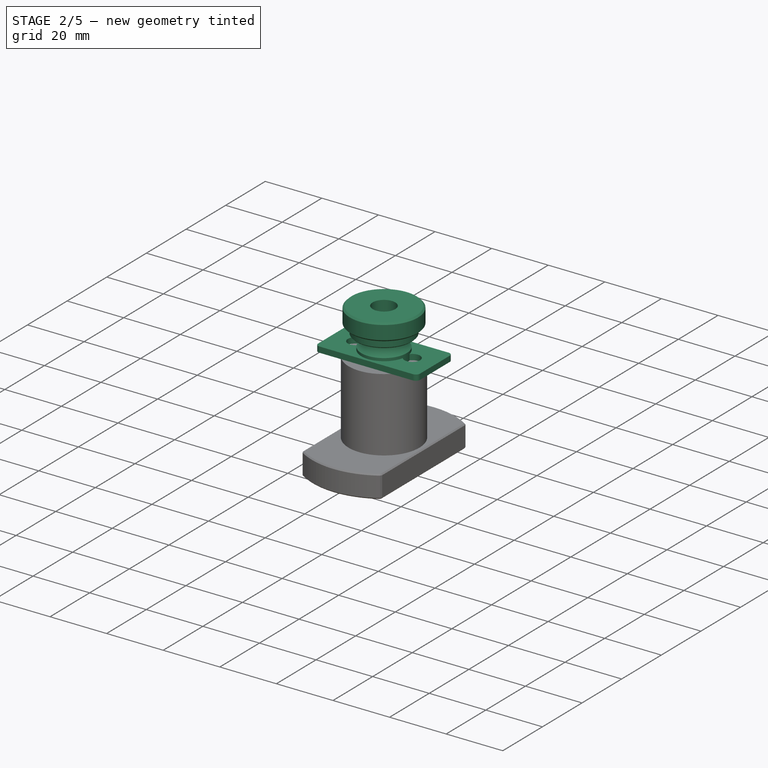
[diagram: stage 2 of 5 — iso view after this stage's code; geometry added in this stage tinted green]
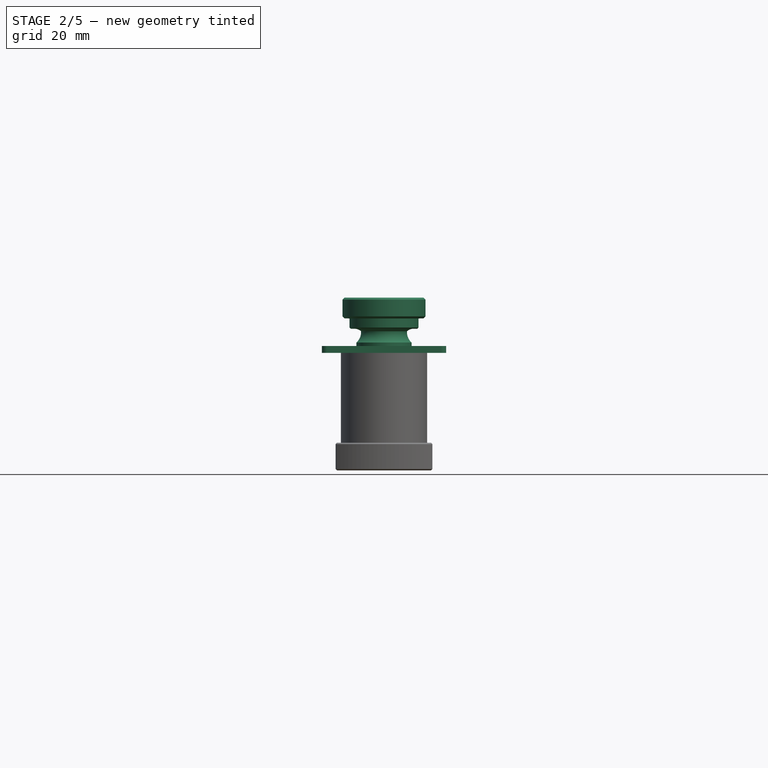
[diagram: stage 2 of 5 — front view after this stage's code; geometry added in this stage tinted green]
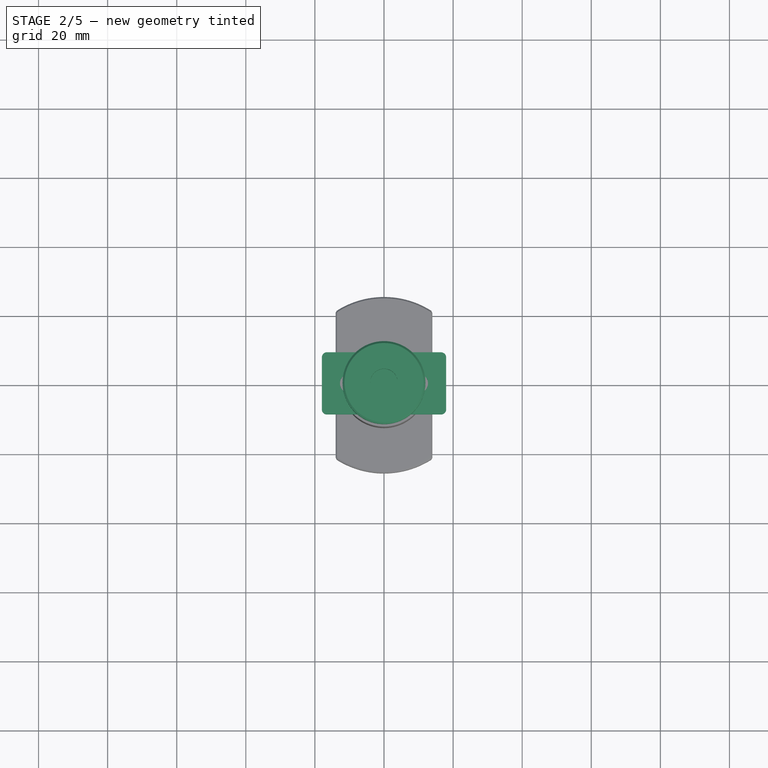
[diagram: stage 2 of 5 — top view after this stage's code; geometry added in this stage tinted green]
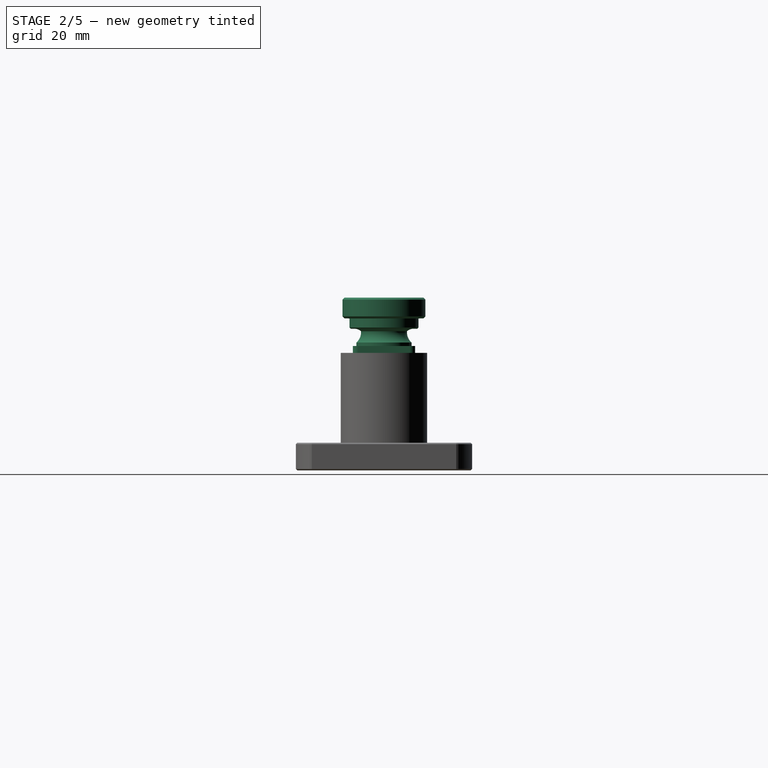
[diagram: stage 2 of 5 — right view after this stage's code; geometry added in this stage tinted green]
FEATURE [PartDesign::CoordinateSystem] Local_CS251  label="LCS_AftBrace_ExtBar_Top"
  AttacherType = Attacher::AttachEngine3D
  MapMode = 11
  Placement = pos=(0,0,2) rot=(0,0,1;1.5708rad)
  Support = -> [Pad046]
FEATURE [PartDesign::CoordinateSystem] Local_CS252  label="LCS_AftBrace_CrossBar_Top"
  AttacherType = Attacher::AttachEngine3D
  MapMode = 11
  Placement = pos=(-36,0,2) rot=(0,0,1;1.5708rad)
  Support = -> [Pad046]
FEATURE [PartDesign::CoordinateSystem] Local_CS253  label="LCS_AftBrace_ExtBar_Nut"
  AttacherType = Attacher::AttachEngine3D
  AttachmentOffset = pos=(0,0,-2) rot=(0,0,1;0rad)
  MapMode = 11
  Placement = pos=(0,0,-2) rot=(0,0,1;1.5708rad)
  Support = -> [Pad046]
FEATURE [PartDesign::CoordinateSystem] Local_CS254  label="LCS_AftBrace_CrossBar_Nut"
  AttacherType = Attacher::AttachEngine3D
  AttachmentOffset = pos=(0,0,-2) rot=(0,0,1;0rad)
  MapMode = 11
  Placement = pos=(-36,0,-2) rot=(0,0,1;1.5708rad)
  Support = -> [Pad046]
FEATURE [PartDesign::CoordinateSystem] Local_CS255  label="LCS_AftBrace_CrossBar_End"
  AttacherType = Attacher::AttachEngine3D
  AttachmentOffset = pos=(0,10,-10) rot=(0,0,1;0rad)
  MapMode = 11
  Placement = pos=(-10,2.2e-15,-10) rot=(0,0,1;1.5708rad)
  Support = -> [Pad046]
FEATURE [PartDesign::Body] Body022037  label="LowerCell_AftBrace"
  Group = -> [Sketch185,Pad046,Local_CS251,Local_CS252,Local_CS253,Local_CS254,Local_CS255]
  Origin = -> Origin089
  Placement = pos=(113,92,10) rot=(0,0,1;0rad)
  Tip = -> Pad046
  expr: .Placement.Base.x = <<Parameters>>.bolt_x
  expr: .Placement.Base.y = <<Parameters>>.collpos_y
FEATURE [Sketcher::SketchObject] Sketch186  label="BracePlate_Sketch"
  FullyConstrained = true
  MapMode = 5
  Support = -> [XY_Plane089]
  sketch-geometry (14):
    g0: LineSegment StartX=-16.5 StartY=9 StartZ=0 EndX=16.5 EndY=9 EndZ=0
    g1: LineSegment StartX=-16.5 StartY=-9 StartZ=0 EndX=16.5 EndY=-9 EndZ=0
    g2: LineSegment StartX=18 StartY=7.5 StartZ=0 EndX=18 EndY=-7.5 EndZ=0
    g3: LineSegment StartX=-18 StartY=7.5 StartZ=0 EndX=-18 EndY=-7.5 EndZ=0
    g4: LineSegment StartX=16.5 StartY=9 StartZ=0 EndX=16.5 EndY=-9 EndZ=0
    g5: LineSegment StartX=18 StartY=7.5 StartZ=0 EndX=-18 EndY=7.5 EndZ=0
    g6: LineSegment StartX=-18 StartY=-7.5 StartZ=0 EndX=18 EndY=-7.5 EndZ=0
    g7: LineSegment StartX=-16.5 StartY=9 StartZ=0 EndX=-16.5 EndY=-9 EndZ=0
    g8: ArcOfCircle CenterX=-16.5 CenterY=7.5 CenterZ=0 NormalX=0 NormalY=0 NormalZ=1 AngleXU=0 Radius=1.5 StartAngle=1.5708 EndAngle=3.14159
    g9: ArcOfCircle CenterX=-16.5 CenterY=-7.5 CenterZ=0 NormalX=0 NormalY=0 NormalZ=1 AngleXU=0 Radius=1.5 StartAngle=3.14159 EndAngle=4.71239
    g10: ArcOfCircle CenterX=16.5 CenterY=7.5 CenterZ=0 NormalX=0 NormalY=0 NormalZ=1 AngleXU=0 Radius=1.5 StartAngle=2e-16 EndAngle=1.5708
    g11: ArcOfCircle CenterX=16.5 CenterY=-7.5 CenterZ=0 NormalX=0 NormalY=0 NormalZ=1 AngleXU=0 Radius=1.5 StartAngle=4.71239 EndAngle=6.28319
    g12: Circle CenterX=-10 CenterY=0 CenterZ=0 NormalX=0 NormalY=0 NormalZ=1 AngleXU=0 Radius=2.75
    g13: Circle CenterX=10 CenterY=0 CenterZ=0 NormalX=0 NormalY=0 NormalZ=1 AngleXU=0 Radius=2.75
  constraints (39):
    c: Horizontal(g1)
    c: Vertical(g3)
    c: Symmetric(g0,g0,g-2)
    c: Symmetric(g2,g2,g-1)
    c: Coincident(g4,g0)
    c: Coincident(g4,g1)
    c: Vertical(g4)
    c: Coincident(g5,g2)
    c: Coincident(g5,g3)
    c: Horizontal(g5)
    c: Coincident(g6,g3)
    c: Coincident(g6,g2)
    c: Horizontal(g6)
    c: Coincident(g7,g0)
    c: Coincident(g7,g1)
    c: Vertical(g7)
    c: PointOnObject(g8,g5)
    c: Coincident(g8,g0)
    c: Coincident(g8,g3)
    c: PointOnObject(g9,g6)
    c: Coincident(g9,g3)
    c: Coincident(g9,g1)
    c: PointOnObject(g10,g5)
    c: Coincident(g10,g0)
    c: Coincident(g10,g2)
    c: PointOnObject(g11,g6)
    c: Coincident(g11,g1)
    c: Coincident(g11,g2)
    c: PointOnObject(g10,g4)
    c: PointOnObject(g11,g4)
    c: PointOnObject(g8,g7)
    c: DistanceY(g7,g7) = 18
    c: DistanceX(g5,g5) = 36
    c: Radius(g10) = 1.5
    c: PointOnObject(g12,g-1)
    c: Equal(g13,g12)
    c: Diameter(g13) = 5.5
    c: Symmetric(g12,g13,g-2)
    c: DistanceX(g12,g13) = 20
FEATURE [PartDesign::Pad] Pad047  label="BracePlate_Base"
  Direction = (0,0,1)
  Length = 2
  Length2 = 10
  Profile = -> Sketch186
  Type = 0
FEATURE [PartDesign::Body] Body022038  label="BracePlate"
  Group = -> [Sketch186,Pad047]
  Origin = -> Origin090
  Tip = -> Pad047
FEATURE [Sketcher::SketchObject] Sketch219  label="GBT834_M6x10_Profile"
  FullyConstrained = true
  MapMode = 5
  Placement = pos=(0,0,0) rot=(1,0,0;1.5708rad)
  Support = -> [XZ_Plane105]
  sketch-geometry (11):
    g0: LineSegment StartX=3 StartY=0 StartZ=0 EndX=3 EndY=-10 EndZ=0
    g1: LineSegment StartX=3 StartY=-10 StartZ=0 EndX=0 EndY=-10 EndZ=0
    g2: LineSegment StartX=3 StartY=0 StartZ=0 EndX=6 EndY=0 EndZ=0
    g3: LineSegment StartX=6 StartY=0 StartZ=0 EndX=6 EndY=2.5 EndZ=0
    g4: LineSegment StartX=6 StartY=2.5 StartZ=0 EndX=5.5 EndY=2.5 EndZ=0
    g5: LineSegment StartX=0 StartY=12 StartZ=0 EndX=10 EndY=12 EndZ=0
    g6: LineSegment StartX=10 StartY=12 StartZ=0 EndX=10 EndY=8 EndZ=0
    g7: LineSegment StartX=5.5 StartY=2.5 StartZ=0 EndX=5.5 EndY=3.5 EndZ=0
    g8: LineSegment StartX=0 StartY=12 StartZ=0 EndX=0 EndY=-10 EndZ=0
    g9: ArcOfCircle CenterX=10 CenterY=3.5 CenterZ=0 NormalX=0 NormalY=0 NormalZ=1 AngleXU=0 Radius=4.5 StartAngle=1.5708 EndAngle=3.14159
    g10: LineSegment StartX=5.5 StartY=3.5 StartZ=0 EndX=10 EndY=3.5 EndZ=0
  constraints (33):
    c: PointOnObject(g0,g-1)
    c: Vertical(g0)
    c: Coincident(g1,g0)
    c: PointOnObject(g1,g-2)
    c: Coincident(g2,g0)
    c: Horizontal(g2)
    c: Coincident(g3,g2)
    c: Coincident(g4,g3)
    c: Horizontal(g4)
    c: PointOnObject(g5,g-2)
    c: Horizontal(g5)
    c: Coincident(g6,g5)
    c: Coincident(g7,g4)
    c: Vertical(g7)
    c: Coincident(g8,g5)
    c: Coincident(g8,g1)
    c: Coincident(g9,g6)
    c: Coincident(g9,g7)
    c: PointOnObject(g9,g6)
    c: Vertical(g6)
    c: Vertical(g3)
    c: Coincident(g10,g7)
    c: Coincident(g10,g9)
    c: Horizontal(g10)
    c: Horizontal(g1)
    c: DistanceX(g0) = 3
    c: DistanceY(g0,g0) = 10
    c: DistanceX(g4) = 5.5
    c: DistanceX(g2) = 6
    c: DistanceY(g3,g3) = 2.5
    c: DistanceY(g6,g6) = 4
    c: DistanceX(g5,g5) = 10
    c: DistanceY(g5) = 12
FEATURE [PartDesign::Revolution] Revolution011  label="GBT834_M6x10_Body"
  Angle = 360
  Axis = (-3e-16,3e-16,1)
  Base = (0,0,0)
  Placement = pos=(0,0,0) rot=(1,0,0;1.5708rad)
  Profile = -> Sketch219
  ReferenceAxis = -> Z_Axis105
FEATURE [PartDesign::CoordinateSystem] Local_CS296  label="GBT834_M6x10_Base"
  AttacherType = Attacher::AttachEngine3D
  MapMode = 11
  Placement = pos=(0,0,-1e-15) rot=(-0.707107,0.707107,0;3.14159rad)
  Support = -> [Revolution011]
FEATURE [PartDesign::Body] Body022051  label="GBT834_M6x10"
  Group = -> [Sketch219,Revolution011,Local_CS296]
  Origin = -> Origin105
  Tip = -> Revolution011
FEATURE [Sketcher::SketchObject] Sketch220  label="GBT806_M6_Profile"
  FullyConstrained = true
  MapMode = 5
  Placement = pos=(0,0,0) rot=(1,0,0;1.5708rad)
  Support = -> [XZ_Plane106]
  sketch-geometry (12):
    g0: LineSegment StartX=3 StartY=0 StartZ=0 EndX=6 EndY=0 EndZ=0
    g1: LineSegment StartX=6 StartY=0 StartZ=0 EndX=6 EndY=2.5 EndZ=0
    g2: LineSegment StartX=3 StartY=0 StartZ=0 EndX=3 EndY=12 EndZ=0
    g3: LineSegment StartX=3 StartY=12 StartZ=0 EndX=9.64645 EndY=12 EndZ=0
    g4: LineSegment StartX=9.64645 StartY=12 StartZ=0 EndX=10 EndY=11.6464 EndZ=0
    g5: LineSegment StartX=10 StartY=11.6464 StartZ=0 EndX=10 EndY=7.35355 EndZ=0
    g6: LineSegment StartX=10 StartY=7.35355 StartZ=0 EndX=9.64645 EndY=7 EndZ=0
    g7: ArcOfCircle CenterX=8.59808 CenterY=4 CenterZ=0 NormalX=0 NormalY=0 NormalZ=1 AngleXU=0 Radius=3 StartAngle=1.5708 EndAngle=3.66519
    g8: LineSegment StartX=8.59808 StartY=4 StartZ=0 EndX=0 EndY=4 EndZ=0
    g9: GeomPoint X=5.59808 Y=4 Z=0
    g10: LineSegment StartX=8.59808 StartY=7 StartZ=0 EndX=8.59808 EndY=4 EndZ=0
    g11: LineSegment StartX=9.64645 StartY=7 StartZ=0 EndX=8.59808 EndY=7 EndZ=0
  constraints (36):
    c: PointOnObject(g0,g-1)
    c: PointOnObject(g0,g-1)
    c: Coincident(g1,g0)
    c: Vertical(g1)
    c: Coincident(g2,g0)
    c: Vertical(g2)
    c: Coincident(g3,g2)
    c: Horizontal(g3)
    c: Coincident(g4,g3)
    c: Coincident(g5,g4)
    c: Vertical(g5)
    c: Coincident(g6,g5)
    c: Coincident(g7,g1)
    c: DistanceY(g2,g2) = 12
    c: DistanceX(g0) = 3
    c: Equal(g4,g6)
    c: Distance(g4) = 0.5
    c: Angle(g4,g5) = 2.35619
    c: Angle(g5,g6) = 2.35619
    c: DistanceY(g6,g3) = 5
    c: DistanceX(g0) = 6
    c: DistanceX(g4) = 10
    c: DistanceY(g1) = 2.5
    c: Coincident(g8,g7)
    c: PointOnObject(g8,g-2)
    c: Horizontal(g8)
    c: PointOnObject(g9,g8)
    c: PointOnObject(g9,g7)
    c: Coincident(g10,g7)
    c: Vertical(g10)
    c: Radius(g7) = 3
    c: Coincident(g7,g10)
    c: Coincident(g11,g6)
    c: Horizontal(g11)
    c: Coincident(g11,g7)
    c: DistanceX(g8,g9) = 5.59808
FEATURE [PartDesign::Revolution] Revolution012  label="GBT806_M6_Body"
  Angle = 360
  Axis = (-3e-16,3e-16,1)
  Base = (0,0,0)
  Placement = pos=(0,0,0) rot=(1,0,0;1.5708rad)
  Profile = -> Sketch220
  ReferenceAxis = -> Z_Axis106
  Reversed = true
FEATURE [PartDesign::CoordinateSystem] Local_CS299  label="GBT806_M6_Base"
  AttacherType = Attacher::AttachEngine3D
  MapMode = 11
  Placement = pos=(0,0,-1e-15) rot=(0,0,1;1.5708rad)
  Support = -> [Revolution012]
FEATURE [PartDesign::Body] Body022052  label="GBT806_M6"
  Group = -> [Sketch220,Revolution012,Local_CS299]
  Origin = -> Origin106
  Tip = -> Revolution012
FEATURE [Sketcher::SketchObject] Sketch221  label="GBT806_M8_Profile"
  FullyConstrained = true
  MapMode = 5
  Placement = pos=(0,0,0) rot=(1,0,0;1.5708rad)
  Support = -> [XZ_Plane107]
  sketch-geometry (12):
    g0: LineSegment StartX=4 StartY=0 StartZ=0 EndX=8 EndY=0 EndZ=0
    g1: LineSegment StartX=8 StartY=0 StartZ=0 EndX=8 EndY=3 EndZ=0
    g2: LineSegment StartX=4 StartY=0 StartZ=0 EndX=4 EndY=16 EndZ=0
    g3: LineSegment StartX=4 StartY=16 StartZ=0 EndX=11.4343 EndY=16 EndZ=0
    g4: LineSegment StartX=11.4343 StartY=16 StartZ=0 EndX=12 EndY=15.4343 EndZ=0
    g5: LineSegment StartX=12 StartY=15.4343 StartZ=0 EndX=12 EndY=10.5657 EndZ=0
    g6: LineSegment StartX=12 StartY=10.5657 StartZ=0 EndX=11.4343 EndY=10 EndZ=0
    g7: ArcOfCircle CenterX=10.6458 CenterY=6 CenterZ=0 NormalX=0 NormalY=0 NormalZ=1 AngleXU=0 Radius=4 StartAngle=1.5708 EndAngle=3.98965
    g8: LineSegment StartX=10.6458 StartY=6 StartZ=0 EndX=0 EndY=6 EndZ=0
    g9: GeomPoint X=6.64575 Y=6 Z=0
    g10: LineSegment StartX=10.6458 StartY=10 StartZ=0 EndX=10.6458 EndY=6 EndZ=0
    g11: LineSegment StartX=11.4343 StartY=10 StartZ=0 EndX=10.6458 EndY=10 EndZ=0
  constraints (36):
    c: PointOnObject(g0,g-1)
    c: PointOnObject(g0,g-1)
    c: Coincident(g1,g0)
    c: Vertical(g1)
    c: Coincident(g2,g0)
    c: Vertical(g2)
    c: Coincident(g3,g2)
    c: Horizontal(g3)
    c: Coincident(g4,g3)
    c: Coincident(g5,g4)
    c: Vertical(g5)
    c: Coincident(g6,g5)
    c: Coincident(g7,g1)
    c: DistanceX(g0) = 4
    c: Equal(g4,g6)
    c: Distance(g4) = 0.8
    c: Angle(g4,g5) = 2.35619
    c: Angle(g5,g6) = 2.35619
    c: DistanceY(g6,g3) = 6
    c: DistanceX(g0) = 8
    c: DistanceX(g4) = 12
    c: DistanceY(g1) = 3
    c: Coincident(g8,g7)
    c: PointOnObject(g8,g-2)
    c: Horizontal(g8)
    c: PointOnObject(g9,g8)
    c: PointOnObject(g9,g7)
    c: Coincident(g10,g7)
    c: Vertical(g10)
    c: Radius(g7) = 4
    c: Coincident(g7,g10)
    c: Coincident(g11,g6)
    c: Horizontal(g11)
    c: Coincident(g11,g7)
    c: DistanceX(g8,g9) = 6.64575
    c: DistanceY(g2) = 16
FEATURE [PartDesign::Revolution] Revolution013  label="GBT806_M8_Body"
  Angle = 360
  Axis = (-3e-16,3e-16,1)
  Base = (0,0,0)
  Placement = pos=(0,0,0) rot=(1,0,0;1.5708rad)
  Profile = -> Sketch221
  ReferenceAxis = -> Z_Axis107
  Reversed = true
FEATURE [PartDesign::CoordinateSystem] Local_CS300  label="GBT806_M8_Base"
  AttacherType = Attacher::AttachEngine3D
  MapMode = 11
  Placement = pos=(0,0,-1.3e-15) rot=(0,0,1;1.5708rad)
  Support = -> [Revolution013]
FEATURE [PartDesign::Body] Body022053  label="GBT806_M8"
  Group = -> [Sketch221,Revolution013,Local_CS300]
  Origin = -> Origin107
  Tip = -> Revolution013
FEATURE [Part::Feature] Part__Feature007  label="Insert_M4_Short v1"
  shape: bbox 6.493 x 6.512 x 4.449 mm, 325 faces (baked)
FEATURE [PartDesign::FeatureBase] BaseFeature009  label="BaseFeature_M4_Short"
  BaseFeature = -> Part__Feature007
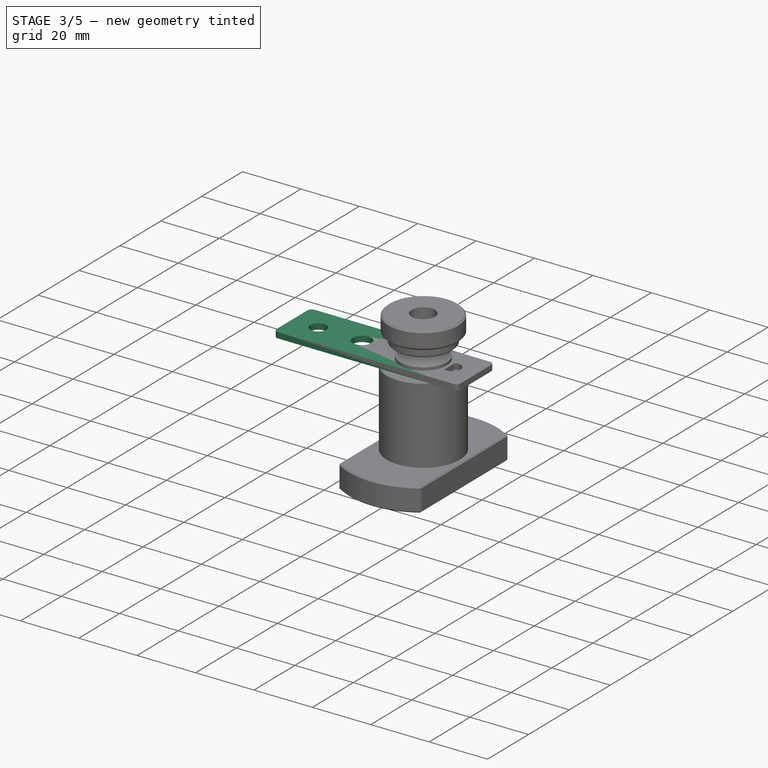
[diagram: stage 3 of 5 — iso view after this stage's code; geometry added in this stage tinted green]
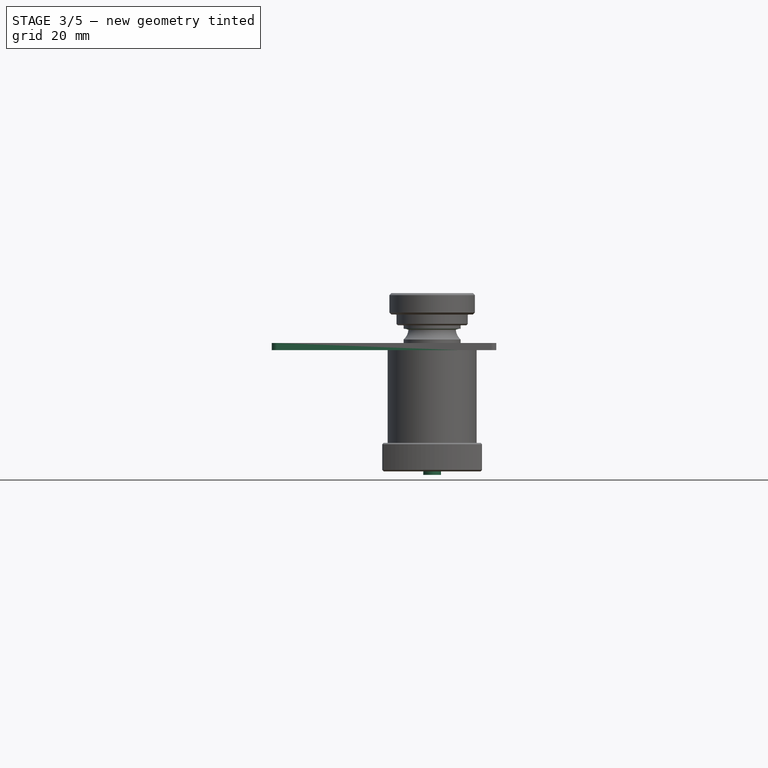
[diagram: stage 3 of 5 — front view after this stage's code; geometry added in this stage tinted green]
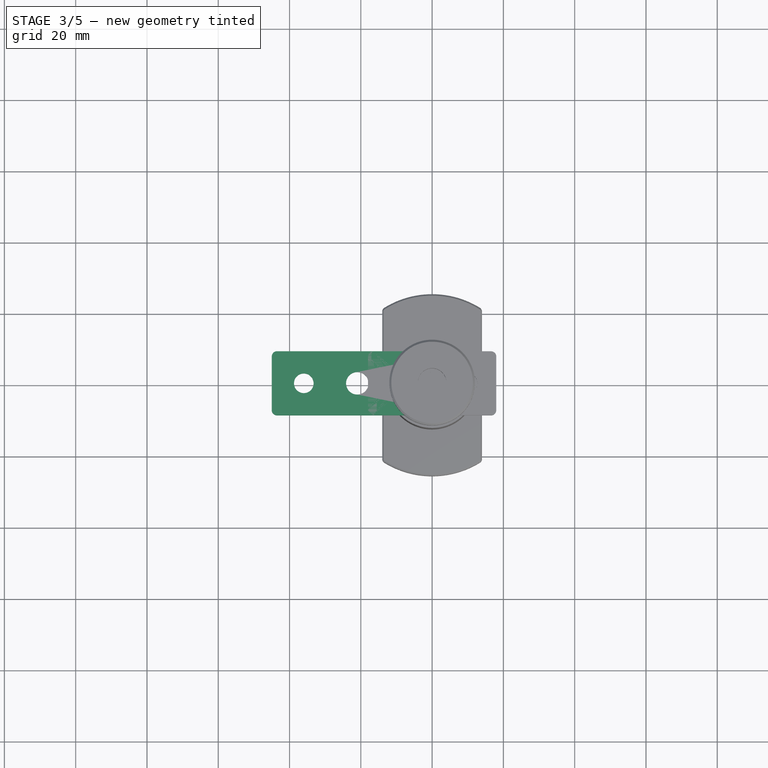
[diagram: stage 3 of 5 — top view after this stage's code; geometry added in this stage tinted green]
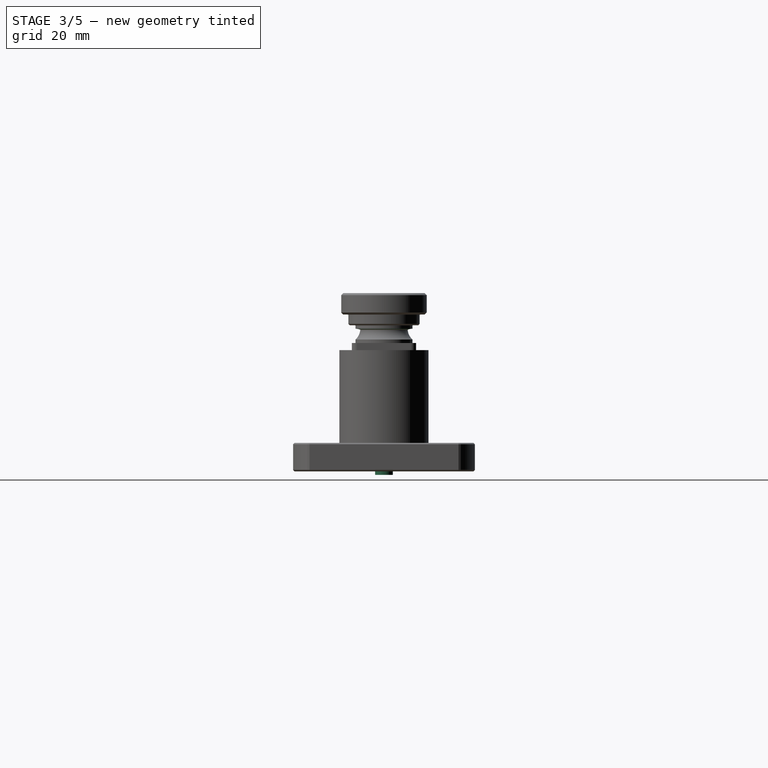
[diagram: stage 3 of 5 — right view after this stage's code; geometry added in this stage tinted green]
FEATURE [PartDesign::CoordinateSystem] Local_CS233  label="DIN466_M8_Base"
  AttacherType = Attacher::AttachEngine3D
  MapMode = 11
  Placement = pos=(0,0,-1.3e-15) rot=(0,0,1;1.5708rad)
  Support = -> [Revolution006]
FEATURE [PartDesign::Body] Body022031  label="DIN466_M8"
  Group = -> [Sketch153,Revolution006,Local_CS233]
  Origin = -> Origin083
  Tip = -> Revolution006
FEATURE [PartDesign::CoordinateSystem] Local_CS234  label="DIN466_M6_Base"
  AttacherType = Attacher::AttachEngine3D
  MapMode = 11
  Placement = pos=(0,0,-1e-15) rot=(0,0,1;1.5708rad)
  Support = -> [Revolution005]
FEATURE [PartDesign::Body] Body022030  label="DIN466_M6"
  Group = -> [Revolution005,Sketch152,Local_CS234]
  Origin = -> Origin002
  Tip = -> Revolution005
FEATURE [Sketcher::SketchObject] Sketch154  label="GBT834_M5x16_Profile"
  FullyConstrained = true
  MapMode = 5
  Placement = pos=(0,0,0) rot=(1,0,0;1.5708rad)
  Support = -> [XZ_Plane003]
  sketch-geometry (11):
    g0: LineSegment StartX=2.5 StartY=0 StartZ=0 EndX=2.5 EndY=-16 EndZ=0
    g1: LineSegment StartX=2.5 StartY=-16 StartZ=0 EndX=0 EndY=-16 EndZ=0
    g2: LineSegment StartX=2.5 StartY=0 StartZ=0 EndX=5 EndY=0 EndZ=0
    g3: LineSegment StartX=5 StartY=0 StartZ=0 EndX=5 EndY=2 EndZ=0
    g4: LineSegment StartX=5 StartY=2 StartZ=0 EndX=4.5 EndY=2 EndZ=0
    g5: LineSegment StartX=0 StartY=10 StartZ=0 EndX=8 EndY=10 EndZ=0
    g6: LineSegment StartX=8 StartY=10 StartZ=0 EndX=8 EndY=6 EndZ=0
    g7: LineSegment StartX=4.5 StartY=2 StartZ=0 EndX=4.5 EndY=2.5 EndZ=0
    g8: LineSegment StartX=0 StartY=10 StartZ=0 EndX=0 EndY=-16 EndZ=0
    g9: ArcOfCircle CenterX=8 CenterY=2.5 CenterZ=0 NormalX=0 NormalY=0 NormalZ=1 AngleXU=0 Radius=3.5 StartAngle=1.5708 EndAngle=3.14159
    g10: LineSegment StartX=4.5 StartY=2.5 StartZ=0 EndX=8 EndY=2.5 EndZ=0
  constraints (33):
    c: PointOnObject(g0,g-1)
    c: Vertical(g0)
    c: Coincident(g1,g0)
    c: PointOnObject(g1,g-2)
    c: Coincident(g2,g0)
    c: Horizontal(g2)
    c: Coincident(g3,g2)
    c: Coincident(g4,g3)
    c: Horizontal(g4)
    c: PointOnObject(g5,g-2)
    c: Horizontal(g5)
    c: Coincident(g6,g5)
    c: Coincident(g7,g4)
    c: Vertical(g7)
    c: Coincident(g8,g5)
    c: Coincident(g8,g1)
    c: Coincident(g9,g6)
    c: Coincident(g9,g7)
    c: PointOnObject(g9,g6)
    c: Vertical(g6)
    c: Vertical(g3)
    c: Coincident(g10,g7)
    c: Coincident(g10,g9)
    c: Horizontal(g10)
    c: Horizontal(g1)
    c: DistanceX(g0) = 2.5
    c: DistanceY(g0,g0) = 16
    c: DistanceX(g4) = 4.5
    c: DistanceX(g2) = 5
    c: DistanceY(g3,g3) = 2
    c: DistanceY(g6,g6) = 4
    c: DistanceX(g5,g5) = 8
    c: DistanceY(g5) = 10
FEATURE [PartDesign::Revolution] Revolution007  label="GBT834_M5x16_Body"
  Angle = 360
  Axis = (0,-2e-16,1)
  Base = (0,0,0)
  Placement = pos=(0,0,0) rot=(1,0,0;1.5708rad)
  Profile = -> Sketch154
  ReferenceAxis = -> Sketch154 [V_Axis]
  Reversed = true
FEATURE [PartDesign::CoordinateSystem] Local_CS235  label="GBT834_M5x16_Base"
  AttacherType = Attacher::AttachEngine3D
  MapMode = 11
  Placement = pos=(0,0,0) rot=(0,0,1;1.5708rad)
  Support = -> [Revolution007]
FEATURE [PartDesign::Body] Body022032  label="GBT834_M5x16"
  Group = -> [Sketch154,Revolution007,Local_CS235]
  Origin = -> Origin003
  Tip = -> Revolution007
FEATURE [Sketcher::SketchObject] Sketch155  label="GBT834_M4x12_Profile"
  FullyConstrained = true
  MapMode = 5
  Placement = pos=(0,0,0) rot=(1,0,0;1.5708rad)
  Support = -> [XZ_Plane005]
  sketch-geometry (11):
    g0: LineSegment StartX=2 StartY=0 StartZ=0 EndX=2 EndY=-12 EndZ=0
    g1: LineSegment StartX=2 StartY=-12 StartZ=0 EndX=0 EndY=-12 EndZ=0
    g2: LineSegment StartX=2 StartY=0 StartZ=0 EndX=4 EndY=0 EndZ=0
    g3: LineSegment StartX=4 StartY=0 StartZ=0 EndX=4 EndY=1.5 EndZ=0
    g4: LineSegment StartX=4 StartY=1.5 StartZ=0 EndX=3.2 EndY=1.5 EndZ=0
    g5: LineSegment StartX=0 StartY=8 StartZ=0 EndX=6 EndY=8 EndZ=0
    g6: LineSegment StartX=6 StartY=8 StartZ=0 EndX=6 EndY=5 EndZ=0
    g7: LineSegment StartX=3.2 StartY=1.5 StartZ=0 EndX=3.2 EndY=2.2 EndZ=0
    g8: LineSegment StartX=0 StartY=8 StartZ=0 EndX=0 EndY=-12 EndZ=0
    g9: ArcOfCircle CenterX=6 CenterY=2.2 CenterZ=0 NormalX=0 NormalY=0 NormalZ=1 AngleXU=0 Radius=2.8 StartAngle=1.5708 EndAngle=3.14159
    g10: LineSegment StartX=3.2 StartY=2.2 StartZ=0 EndX=6 EndY=2.2 EndZ=0
  constraints (33):
    c: PointOnObject(g0,g-1)
    c: Vertical(g0)
    c: Coincident(g1,g0)
    c: PointOnObject(g1,g-2)
    c: Coincident(g2,g0)
    c: Horizontal(g2)
    c: Coincident(g3,g2)
    c: Coincident(g4,g3)
    c: Horizontal(g4)
    c: PointOnObject(g5,g-2)
    c: Horizontal(g5)
    c: Coincident(g6,g5)
    c: Coincident(g7,g4)
    c: Vertical(g7)
    c: Coincident(g8,g5)
    c: Coincident(g8,g1)
    c: Coincident(g9,g6)
    c: Coincident(g9,g7)
    c: PointOnObject(g9,g6)
    c: Vertical(g6)
    c: Vertical(g3)
    c: Coincident(g10,g7)
    c: Coincident(g10,g9)
    c: Horizontal(g10)
    c: Horizontal(g1)
    c: DistanceX(g0) = 2
    c: DistanceY(g0,g0) = 12
    c: DistanceX(g4) = 3.2
    c: DistanceX(g2) = 4
    c: DistanceY(g3,g3) = 1.5
    c: DistanceY(g6,g6) = 3
    c: DistanceX(g5,g5) = 6
    c: DistanceY(g5) = 8
FEATURE [Sketcher::SketchObject] Sketch003  label="GBT834_M5x35_Profile"
  FullyConstrained = true
  MapMode = 5
  Placement = pos=(0,0,0) rot=(1,0,0;1.5708rad)
  Support = -> [XZ_Plane004]
  sketch-geometry (11):
    g0: LineSegment StartX=2.5 StartY=0 StartZ=0 EndX=2.5 EndY=-35 EndZ=0
    g1: LineSegment StartX=2.5 StartY=-35 StartZ=0 EndX=0 EndY=-35 EndZ=0
    g2: LineSegment StartX=2.5 StartY=0 StartZ=0 EndX=5 EndY=0 EndZ=0
    g3: LineSegment StartX=5 StartY=0 StartZ=0 EndX=5 EndY=2 EndZ=0
    g4: LineSegment StartX=5 StartY=2 StartZ=0 EndX=4.5 EndY=2 EndZ=0
    g5: LineSegment StartX=0 StartY=10 StartZ=0 EndX=8 EndY=10 EndZ=0
    g6: LineSegment StartX=8 StartY=10 StartZ=0 EndX=8 EndY=6 EndZ=0
    g7: LineSegment StartX=4.5 StartY=2 StartZ=0 EndX=4.5 EndY=2.5 EndZ=0
    g8: LineSegment StartX=0 StartY=10 StartZ=0 EndX=0 EndY=-35 EndZ=0
    g9: ArcOfCircle CenterX=8 CenterY=2.5 CenterZ=0 NormalX=0 NormalY=0 NormalZ=1 AngleXU=0 Radius=3.5 StartAngle=1.5708 EndAngle=3.14159
    g10: LineSegment StartX=4.5 StartY=2.5 StartZ=0 EndX=8 EndY=2.5 EndZ=0
  constraints (33):
    c: PointOnObject(g0,g-1)
    c: Vertical(g0)
    c: Coincident(g1,g0)
    c: PointOnObject(g1,g-2)
    c: Coincident(g2,g0)
    c: Horizontal(g2)
    c: Coincident(g3,g2)
    c: Coincident(g4,g3)
    c: Horizontal(g4)
    c: PointOnObject(g5,g-2)
    c: Horizontal(g5)
    c: Coincident(g6,g5)
    c: Coincident(g7,g4)
    c: Vertical(g7)
    c: Coincident(g8,g5)
    c: Coincident(g8,g1)
    c: Coincident(g9,g6)
    c: Coincident(g9,g7)
    c: PointOnObject(g9,g6)
    c: Vertical(g6)
    c: Vertical(g3)
    c: Coincident(g10,g7)
    c: Coincident(g10,g9)
    c: Horizontal(g10)
    c: Horizontal(g1)
    c: DistanceX(g0) = 2.5
    c: DistanceY(g0,g0) = 35
    c: DistanceX(g4) = 4.5
    c: DistanceX(g2) = 5
    c: DistanceY(g3,g3) = 2
    c: DistanceY(g6,g6) = 4
    c: DistanceX(g5,g5) = 8
    c: DistanceY(g5) = 10
FEATURE [PartDesign::Revolution] Revolution008  label="GBT834_M5x35_Body"
  Angle = 360
  Axis = (0,-2e-16,1)
  Base = (0,0,0)
  Placement = pos=(0,0,0) rot=(1,0,0;1.5708rad)
  Profile = -> Sketch003
  ReferenceAxis = -> Sketch003 [V_Axis]
  Reversed = true
FEATURE [PartDesign::CoordinateSystem] Local_CS236  label="GBT834_M5x35_Base"
  AttacherType = Attacher::AttachEngine3D
  MapMode = 11
  Placement = pos=(0,0,0) rot=(0,0,1;1.5708rad)
  Support = -> [Revolution008]
FEATURE [PartDesign::Body] Body003  label="GBT834_M5x35"
  Group = -> [Sketch003,Revolution008,Local_CS236]
  Origin = -> Origin004
  Tip = -> Revolution008
FEATURE [PartDesign::Revolution] Revolution009  label="GBT834_M4x12_Body"
  Angle = 360
  Axis = (0,-2e-16,1)
  Base = (0,0,0)
  Placement = pos=(0,0,0) rot=(1,0,0;1.5708rad)
  Profile = -> Sketch155
  ReferenceAxis = -> Sketch155 [V_Axis]
  Reversed = true
FEATURE [PartDesign::CoordinateSystem] Local_CS238  label="GBT834_M4x12_Base"
  AttacherType = Attacher::AttachEngine3D
  MapMode = 11
  Placement = pos=(0,0,0) rot=(0,0,1;1.5708rad)
  Support = -> [Revolution009]
FEATURE [PartDesign::Body] Body004  label="GBT834_M4x12"
  Group = -> [Sketch155,Revolution009,Local_CS238]
  Origin = -> Origin005
  Tip = -> Revolution009
FEATURE [Sketcher::SketchObject] Sketch156  label="GBT834_M4x25_Profile"
  FullyConstrained = true
  MapMode = 5
  Placement = pos=(0,0,0) rot=(1,0,0;1.5708rad)
  Support = -> [XZ_Plane084]
  sketch-geometry (11):
    g0: LineSegment StartX=2 StartY=0 StartZ=0 EndX=2 EndY=-25 EndZ=0
    g1: LineSegment StartX=2 StartY=-25 StartZ=0 EndX=0 EndY=-25 EndZ=0
    g2: LineSegment StartX=2 StartY=0 StartZ=0 EndX=4 EndY=0 EndZ=0
    g3: LineSegment StartX=4 StartY=0 StartZ=0 EndX=4 EndY=1.5 EndZ=0
    g4: LineSegment StartX=4 StartY=1.5 StartZ=0 EndX=3.2 EndY=1.5 EndZ=0
    g5: LineSegment StartX=0 StartY=8 StartZ=0 EndX=6 EndY=8 EndZ=0
    g6: LineSegment StartX=6 StartY=8 StartZ=0 EndX=6 EndY=5 EndZ=0
    g7: LineSegment StartX=3.2 StartY=1.5 StartZ=0 EndX=3.2 EndY=2.2 EndZ=0
    g8: LineSegment StartX=0 StartY=8 StartZ=0 EndX=0 EndY=-25 EndZ=0
    g9: ArcOfCircle CenterX=6 CenterY=2.2 CenterZ=0 NormalX=0 NormalY=0 NormalZ=1 AngleXU=0 Radius=2.8 StartAngle=1.5708 EndAngle=3.14159
    g10: LineSegment StartX=3.2 StartY=2.2 StartZ=0 EndX=6 EndY=2.2 EndZ=0
  constraints (33):
    c: PointOnObject(g0,g-1)
    c: Vertical(g0)
    c: Coincident(g1,g0)
    c: PointOnObject(g1,g-2)
    c: Coincident(g2,g0)
    c: Horizontal(g2)
    c: Coincident(g3,g2)
    c: Coincident(g4,g3)
    c: Horizontal(g4)
    c: PointOnObject(g5,g-2)
    c: Horizontal(g5)
    c: Coincident(g6,g5)
    c: Coincident(g7,g4)
    c: Vertical(g7)
    c: Coincident(g8,g5)
    c: Coincident(g8,g1)
    c: Coincident(g9,g6)
    c: Coincident(g9,g7)
    c: PointOnObject(g9,g6)
    c: Vertical(g6)
    c: Vertical(g3)
    c: Coincident(g10,g7)
    c: Coincident(g10,g9)
    c: Horizontal(g10)
    c: Horizontal(g1)
    c: DistanceX(g0) = 2
    c: DistanceY(g0,g0) = 25
    c: DistanceX(g4) = 3.2
    c: DistanceX(g2) = 4
    c: DistanceY(g3,g3) = 1.5
    c: DistanceY(g6,g6) = 3
    c: DistanceX(g5,g5) = 6
    c: DistanceY(g5) = 8
FEATURE [PartDesign::Revolution] Revolution010  label="GBT834_M4x25_Body"
  Angle = 360
  Axis = (0,-2e-16,1)
  Base = (0,0,0)
  Placement = pos=(0,0,0) rot=(1,0,0;1.5708rad)
  Profile = -> Sketch156
  ReferenceAxis = -> Sketch156 [V_Axis]
  Reversed = true
FEATURE [PartDesign::CoordinateSystem] Local_CS237  label="GBT834_M4x25_Base"
  AttacherType = Attacher::AttachEngine3D
  MapMode = 11
  Placement = pos=(0,0,0) rot=(0,0,1;1.5708rad)
  Support = -> [Revolution010]
FEATURE [PartDesign::Body] Body005  label="GBT834_M4x25"
  Group = -> [Sketch156,Revolution010,Local_CS237]
  Origin = -> Origin084
  Tip = -> Revolution010
FEATURE [Sketcher::SketchObject] Sketch185  label="AftBrace_Base_Sketch"
  FullyConstrained = true
  MapMode = 5
  Support = -> [XY_Plane088]
  expr: Constraints[39] = <<Parameters>>.bolt_x - <<Parameters>>.collpos_y
  sketch-geometry (15):
    g0: LineSegment StartX=7.5 StartY=9 StartZ=0 EndX=-43.5 EndY=9 EndZ=0
    g1: LineSegment StartX=-45 StartY=7.5 StartZ=0 EndX=-45 EndY=-7.5 EndZ=0
    g2: LineSegment StartX=-43.5 StartY=-9 StartZ=0 EndX=7.5 EndY=-9 EndZ=0
    g3: LineSegment StartX=9 StartY=-7.5 StartZ=0 EndX=9 EndY=7.5 EndZ=0
    g4: ArcOfCircle CenterX=7.5 CenterY=7.5 CenterZ=0 NormalX=0 NormalY=0 NormalZ=1 AngleXU=0 Radius=1.5 StartAngle=0 EndAngle=1.5708
    g5: ArcOfCircle CenterX=7.5 CenterY=-7.5 CenterZ=0 NormalX=0 NormalY=0 NormalZ=1 AngleXU=0 Radius=1.5 StartAngle=4.71239 EndAngle=6.28319
    g6: ArcOfCircle CenterX=-43.5 CenterY=7.5 CenterZ=0 NormalX=0 NormalY=0 NormalZ=1 AngleXU=0 Radius=1.5 StartAngle=1.5708 EndAngle=3.14159
    g7: ArcOfCircle CenterX=-43.5 CenterY=-7.5 CenterZ=0 NormalX=0 NormalY=0 NormalZ=1 AngleXU=0 Radius=1.5 StartAngle=3.14159 EndAngle=4.71239
    g8: LineSegment StartX=-43.5 StartY=9 StartZ=0 EndX=-43.5 EndY=-9 EndZ=0
    g9: LineSegment StartX=7.5 StartY=9 StartZ=0 EndX=7.5 EndY=-9 EndZ=0
    g10: LineSegment StartX=9 StartY=7.5 StartZ=0 EndX=-45 EndY=7.5 EndZ=0
    g11: LineSegment StartX=-45 StartY=-7.5 StartZ=0 EndX=9 EndY=-7.5 EndZ=0
    g12: Circle CenterX=0 CenterY=0 CenterZ=0 NormalX=0 NormalY=0 NormalZ=1 AngleXU=0 Radius=2.75
    g13: Circle CenterX=-21 CenterY=0 CenterZ=0 NormalX=0 NormalY=0 NormalZ=1 AngleXU=0 Radius=3.15
    g14: Circle CenterX=-36 CenterY=0 CenterZ=0 NormalX=0 NormalY=0 NormalZ=1 AngleXU=0 Radius=2.75
  constraints (43):
    c: Horizontal(g2)
    c: Coincident(g4,g0)
    c: Coincident(g4,g3)
    c: Coincident(g5,g2)
    c: Coincident(g5,g3)
    c: Coincident(g6,g0)
    c: Coincident(g6,g1)
    c: Coincident(g7,g1)
    c: Coincident(g7,g2)
    c: Coincident(g8,g0)
    c: Coincident(g8,g2)
    c: Coincident(g9,g0)
    c: Coincident(g9,g2)
    c: Coincident(g10,g3)
    c: Coincident(g10,g1)
    c: Horizontal(g10)
    c: Coincident(g11,g1)
    c: Coincident(g11,g3)
    c: Horizontal(g11)
    c: PointOnObject(g7,g11)
    c: PointOnObject(g5,g11)
    c: PointOnObject(g4,g10)
    c: PointOnObject(g6,g10)
    c: PointOnObject(g6,g8)
    c: PointOnObject(g7,g8)
    c: PointOnObject(g5,g9)
    c: PointOnObject(g4,g9)
    c: Vertical(g9)
    c: Equal(g4,g5)
    c: Equal(g7,g6)
    c: Radius(g4) = 1.5
    c: DistanceY(g9,g9) = 18
    c: DistanceX(g-1,g3) = 9
    c: Coincident(g12,g-1)
    c: PointOnObject(g13,g-1)
    c: PointOnObject(g14,g-1)
    c: Equal(g12,g14)
    c: Diameter(g12) = 5.5
    c: Diameter(g13) = 6.3
    c: DistanceX(g13,g12) = 21
    c: DistanceX(g14,g13) = 15
    c: DistanceX(g1,g14) = 9
    c: Symmetric(g0,g2,g-1)
FEATURE [PartDesign::Pad] Pad046  label="AftBrace_Pad"
  Direction = (0,0,1)
  Length = 2
  Length2 = 10
  Profile = -> Sketch185
  Type = 0
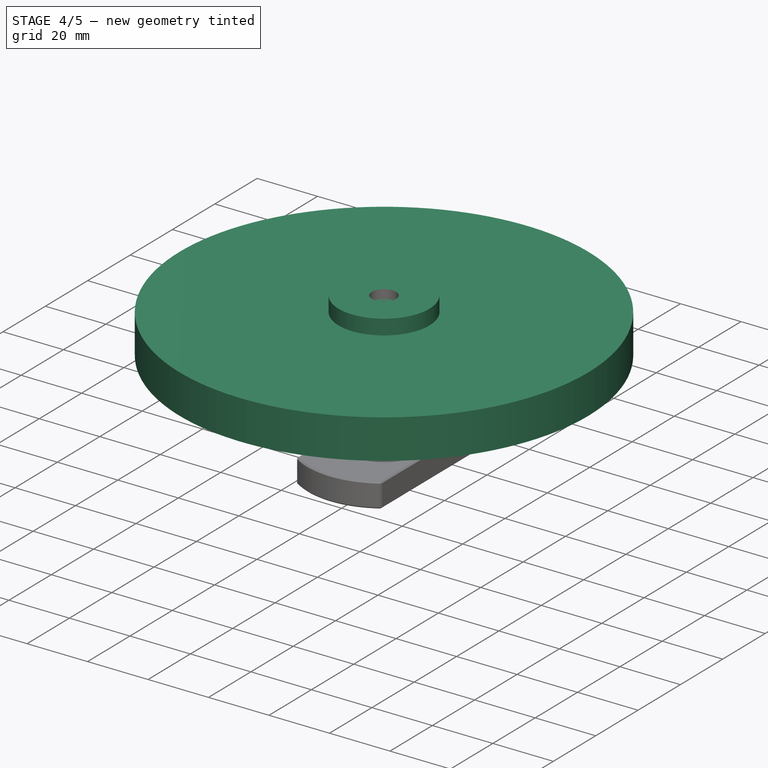
[diagram: stage 4 of 5 — iso view after this stage's code; geometry added in this stage tinted green]
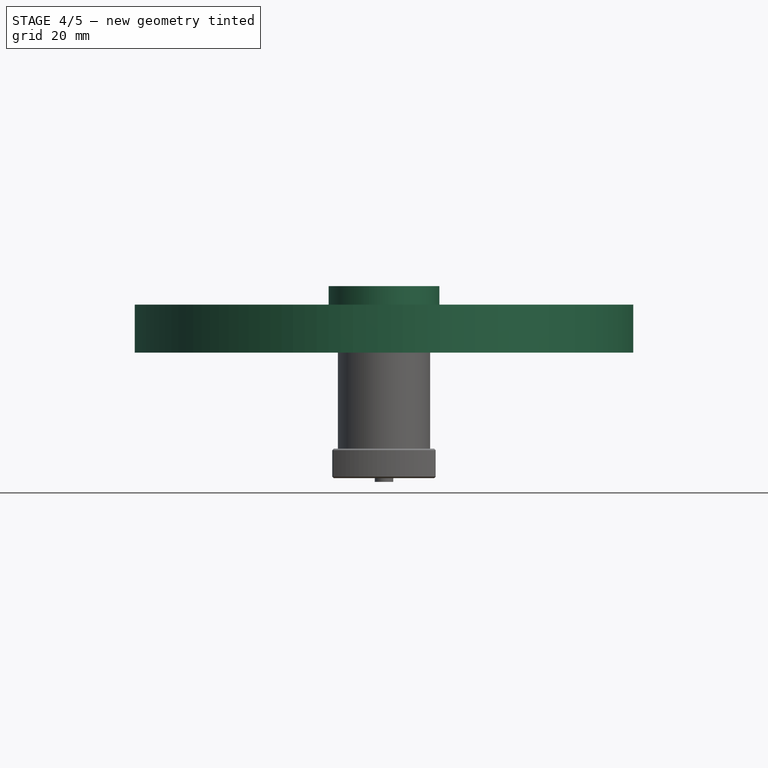
[diagram: stage 4 of 5 — front view after this stage's code; geometry added in this stage tinted green]
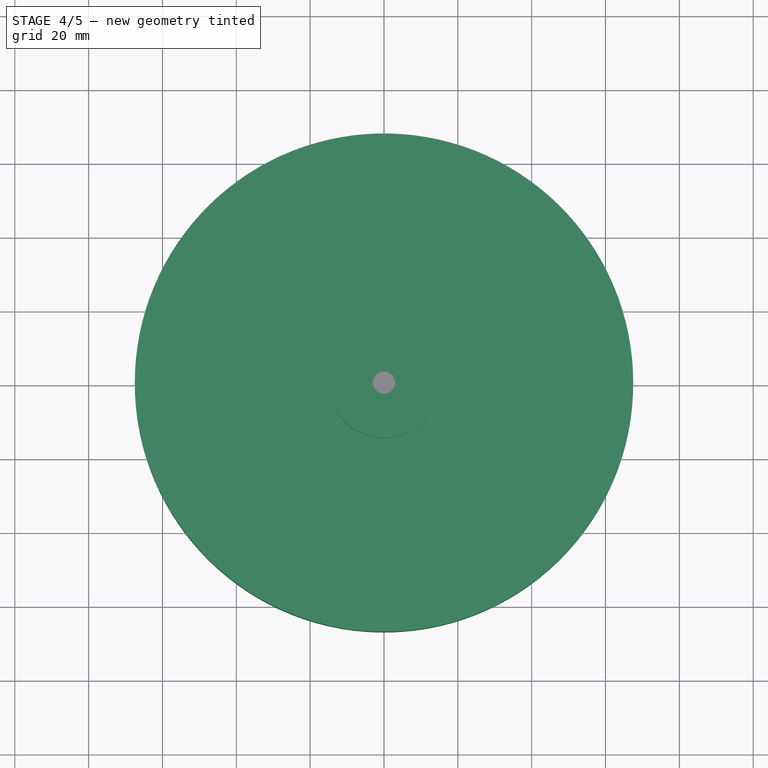
[diagram: stage 4 of 5 — top view after this stage's code; geometry added in this stage tinted green]
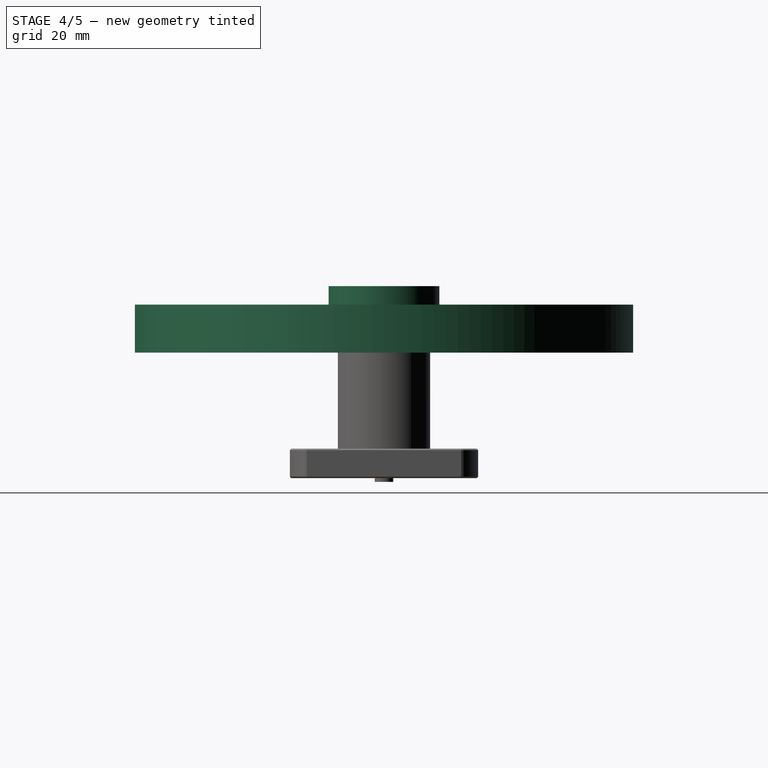
[diagram: stage 4 of 5 — right view after this stage's code; geometry added in this stage tinted green]
FEATURE [Spreadsheet::Sheet] Spreadsheet  label="Parameters"
  cells = A2='Primary Mirror Diameter; B2(pri_mdia)=200; C2=150; D2=200; F2='Focal Length; G2(sys_flen)==pri_fratio * pri_mdia; J2='Secondary Mirror Minor Diameter; K2(sec_mdia)=62.5; N2='M4 Insert Bore; O2(acc_M4Bore)=5.6; A3='Primary Mirror Thickness; B3(pri_mthick)=27; C3=20; D3=25; F3='Focal Plane Height; G3(sys_fpheight)==sec_focuserplate_x + foc_fheight * 2 + foc_travel / 2; J3='Secondary Mirror Thickness; K3(sec_mthick)=12; N3='FDM fit tolerance; O3(acc_FDMtol)=0.3; A4='Primary Mirror F-Ratio; B4(pri_fratio)=5; J4='Secondary Pole Diameter; K4(sec_poledia)=18; A5='Additional radial spacing for tilt; B5(pri_mspace)==ceil(pri_assembly_r * cos(pri_maxtilt) + pri_assembly_z * sin(pri_maxtilt) - pri_assembly_r); C5==pri_assembly_r * cos(10 deg) + pri_assembly_z * sin(10 deg) - pri_assembly_r; D5==pri_assembly_z * sin(10 deg); F5='Upper Cell Datum; G5(datum_uppercell)==datum_mirrorbase - pri_mpad_r - pri_uthick; J5='Secondary Plate Thickness; K5(sec_pthick)=8; A6='Additional height for tilt; B6(pri_mzspace)==ceil(pri_assembly_z * sin(pri_maxtilt)); F6='Lower Cell Datum; G6(datum_lowercell)==datum_uppercell - pri_cellfloat - 10; H6='centre of extrusion; J6='Secondary Flex Thickness; K6(sec_fthick)=3; A7='Primary Mirror max tilt; B7(pri_maxtilt)==10 deg; F7='Mirror Pad Datum; G7(datum_mirrorpad)==datum_uppercell + pri_bthick; J7='Secondary Sideplate Thickness out/in; K7(sec_spthick)=1; L7(sec_spoverlap)=2; A8='Primary Upper Plate Thickness; B8(pri_uthick)=6; F8='Mirror Bottom Datum; G8(datum_mirrorbase)==-pri_mthick; J8='Secondary Thinwall Thickness; K8(sec_thinwall)=1.8; A9='Primary Base Plate Thickness; B9(pri_bthick)=6; D9=7.5; F9='Rocker Z Datum; G9(datum_rocker_z)==round(sqrt(rail_dia * rail_dia - boxsize_y * boxsize_y) / 2 + datum_lowercell - rocker_vspace - 10); J9='Secondary Mirror Thickness Allowance; K9(sec_mtvar)=4; A10='Primary Side Plate Thickness; B10(pri_sthick)=5; F10='Pole Lower Datum; G10(datum_pole_lower)==datum_lowercell + pri_bthick + pri_sthick; J10='Secondary General Fillet; K10(sec_fillet)=2; A11='Primary General Tolerance; B11(pri_tol)=0.5; F11='Rocker Base Datum; G11(datum_azbase)==ceil(datum_rocker_z - rail_dia / 2) - rocker_zspace; J11='Secondary Spider Thickness; K11(sec_spiderwidth)=1; A12='Collimation Bolt Size; B12(collbolt)=6; J12='Secondary Spider Height; K12(sec_stalkheight)=20; A13='Mirror Base Support Point; B13(rbracefrac)=0.6; C13(rbracepos)==ceil(rbracefrac * pri_mdia / 2); F13='Mirror to Mirror Distance; G13(mirror_distance)==sys_flen - sys_fpheight; H13='Newt For Web formula (Mirror Face to Focuser Hole); J13='Secondary Clamp Height; K13(sec_clampheight)=20; A14='Collimation Bolt Point; B14(cpointfrac)=0.75; C14(cpointpos)==rbracepos + collslot; J14='Secondary Hub Diameter; K14(sec_hubdia)=40; A15='Mirror Vertical Support Point; B15(zbracefrac)=0.45; C15(zbracepos)==pri_mirror_CMz; F15='Secondary Mirror Pad Datum; G15(datum_sec_mirrorpad)==mirror_distance + (sec_mthick + sec_mfloat) * sqrt(2); J15='Central Bolt Size; K15(sec_centralbolt)=5; A16='Aft Collimation y-position; B16(collpos_y)==ceil(pri_assembly_r / sqrt(2)); C16='Assume Square; F16='Tilt Plate lower to Mirror Pad Upper; G16(sec_tiltspacing)==sec_tiltball / 2 / sin(atan(sec_tiltball / 2)) - 1; J16='Collimation Bolt Size; K16(sec_collbolt)=4; A17='Collimation Slot Length; B17(collslot)==ceil(pri_mdia / cos(pri_maxtilt) - pri_mdia); C17(collextra)==pri_uthick * tan(pri_maxtilt); D17==pri_mdia / cos(pri_maxtilt) - pri_mdia; F17='Tilt Plate Datum; G17(datum_sec_tiltplate)==ceil(datum_sec_mirrorpad + sec_hubdia / 2 + sec_pthick + sec_tiltspacing + sec_mtvar / 2); H17='Excludes top/bottom plates; J17='Side Bolt Size; K17(sec_sidebolt)=4; A18='Clip Bolt Size; B18(clipbolt)=4; F18='Pad Mid Height; G18(sec_padheight)==datum_sec_tiltplate - sec_tiltspacing - datum_sec_mirrorpad; J18='Pole Clamp General Tolerance; K18(sec_clamptol)=0.7; A19='Clip Overhang; B19(clipover)=5; F19='Rotation Plate Datum; G19(datum_sec_upperhub)==datum_sec_tiltplate + sec_pthick; J19='Mirror Pad Spacing; K19(sec_mfloat)=2; A20='Clip Overhang Thickness; B20(clipthick)=4; F20='Upper Sidebolt z-datum; G20(sec_sidebolt_upper_z)==datum_sec_upperhub + sec_stalkheight / 2; H20==G20 - G17; J20='Collimation Float; K20(sec_collfloat)=10; A21='Clip Radial Thickness; B21(clipwidth)==clipbolt * 2.5; F21='Lower Clamp z-datum; G21(datum_sec_lowerclamp)==mirror_distance - ceil(foc_inner / 2 + foc_wall + foc_spacing * 4 + foc_flange + sec_clampheight / 2 + sec_clamptol); J21='Tilt Ball Diameter; K21(sec_tiltball)=8; A22='Clip Slot Adjustment; B22(clipslot)=5; F22='Lower Sidebolt z-datum; G22(sec_sidebolt_lower_z)==datum_sec_lowerclamp + sec_clampheight / 2; J22='Collimation Bolt Point; K22(sec_cpointfrac)=0.6; L22(sec_cpointpos)==sec_cpointfrac * sec_hubdia / 2; A23='Radial Mirror Pad height; B23(pri_mpad_r)=4; F23='Focuser Plate Side Datum; G23(sec_focuserplate_x)==bolt_x + sec_poledia / 2 - sec_spthick; J23='Max Absolute z-rotation; K23(sec_zrotmax)==25 deg; A24='Side Mirror Pad height; B24(pri_mpad_z)=3; F24='Focuser to top; G24==sec_sidebolt_upper_z + sec_stalkheight - mirror_distance; F25='Mirror Face to pole base; G25==datum_lowercell + pri_bthick + pri_sthick; J25='Focuser Inner Diameter; K25(foc_inner)=52; A26='Primary Assembly Radius; B26(pri_assembly_r)==pri_mdia / 2 + pri_mpad_z + clipwidth + collbolt * 2.5 + collslot / 2; C26==pri_mdia / 2 + pri_mpad_z + clipwidth + pri_tol; D26==pri_assembly_r / sqrt(2); J26='Focuser Travel; K26(foc_travel)=40; A27='Primary Assembly Height; B27(pri_assembly_z)==pri_bthick * 2 + pri_mpad_r + pri_mthick + pri_tol; F27='Box Size X; G27(boxsize_x)==bolt_x * 2 + 20; J27='Focuser Wall; K27(foc_wall)=2; A28='Primary Frame Width; B28(pri_fwidth)=25; F28='Box Size Y; G28(boxsize_y)==bolt_y * 2 + 20; J28='Focuser Spacing; K28(foc_spacing)=2; A29='Primary General Fillet; B29(pri_fillet)=2.5; F29='Box Size Z; G29(boxheight)==datum_mirrorpad + pri_mspace + pri_mthick / 2 - datum_lowercell + pri_bthick; J29='Focuser Flange; K29(foc_flange)=7; A30='Basebolt X position; B30(bolt_x)==collpos_y + max(20; ceil(sqrt((pri_fwidth / 2 + pri_mspace + pri_poledia / 2) ^ 2 - 20 ^ 2))); C30==max(pri_mdia / 2 - pri_poledia / 2; pri_poledia / 2 + pri_mspace + collpos_y + pri_fwidth / 2); F30='Mirror Offset; G30(sec_offset_x)==sec_mdia / (4 * pri_fratio); J30='Focuser Flange Height; K30(foc_fheight)=12; A31='Basebolt Y position; B31(bolt_y)==collpos_y + max(20; ceil(sqrt((pri_fwidth / 2 + pri_mspace + pri_poledia / 2) ^ 2 - 20 ^ 2))); C31==max(pri_mdia / 2 - pri_poledia / 2; collpos_y); F31='Sidebolt Y position; G31(sec_sidebolt_y)==bolt_y - sec_poledia - sec_sidebolt / 2 - sec_fthick; J31='Focuser Base Flange; K31(foc_baseflange)=12; A32='Primary Pole Pad Nominal Size; B32(pri_poledia)=20; J32='Focuser Shaft; K32(foc_shaft)==foc_travel + fbearing_thick * 2 + foc_fheight * 2; A33='Primary Pole Outer Diameter; +115 more cells
FEATURE [PartDesign::AdditiveCylinder] Cylinder  label="CounterWeight_Cylinder"
  Angle = 360
  AttacherType = Attacher::AttachEngine3D
  FirstAngle = 0
  Height = 13
  MapMode = 5
  Radius = 67.5
  SecondAngle = 0
  Support = -> [XY_Plane029]
  expr: Radius = 135 mm / 2
FEATURE [PartDesign::SubtractiveCylinder] Cylinder002  label="CounterWeight_BoreCut"
  Angle = 360
  AttacherType = Attacher::AttachEngine3D
  AttachmentOffset = pos=(0,0,-1) rot=(0,0,1;0rad)
  BaseFeature = -> Cylinder
  FirstAngle = 0
  Height = 30
  MapMode = 2
  Placement = pos=(0,0,-1) rot=(0,0,1;0rad)
  Radius = 14
  SecondAngle = 0
  Support = -> [Cylinder]
  expr: Radius = 14 mm
FEATURE [PartDesign::CoordinateSystem] Local_CS193  label="LCS_623Bearing_A"
  AttacherType = Attacher::AttachEngine3D
  MapMode = 11
  Placement = pos=(0,0,2) rot=(0,0,1;1.5708rad)
  Support = -> [BaseFeature004]
FEATURE [PartDesign::CoordinateSystem] Local_CS194  label="LCS_623Bearing_B"
  AttacherType = Attacher::AttachEngine3D
  MapMode = 11
  Placement = pos=(0,0,-2) rot=(0.707107,-0.707107,0;3.14159rad)
  Support = -> [BaseFeature004]
FEATURE [PartDesign::Body] Body022012  label="623Bearing"
  BaseFeature = -> Part__Feature002
  Group = -> [BaseFeature004,Local_CS193,Local_CS194]
  Origin = -> Origin065
  Tip = -> BaseFeature004
FEATURE [Part::Feature] Part__Feature006  label="CollKnob6_Base"
  shape: bbox 20 x 19.96 x 8 mm, 123 faces (baked)
FEATURE [PartDesign::FeatureBase] BaseFeature006  label="BaseFeature_CollKnob6"
  BaseFeature = -> Part__Feature006
FEATURE [PartDesign::CoordinateSystem] Local_CS210  label="LCS_CounterWeightClamp_Bolt"
  AttacherType = Attacher::AttachEngine3D
  MapMode = 11
  Placement = pos=(1.46e-14,-6.7e-15,-12) rot=(0,0,1;3.14159rad)
  Support = -> [Pocket100]
FEATURE [Sketcher::SketchObject] Sketch152  label="DIN466_M6_Profile"
  FullyConstrained = true
  MapMode = 5
  Placement = pos=(0,0,0) rot=(1,0,0;1.5708rad)
  Support = -> [XZ_Plane002]
  sketch-geometry (6):
    g0: LineSegment StartX=3 StartY=0 StartZ=0 EndX=6 EndY=0 EndZ=0
    g1: LineSegment StartX=6 StartY=0 StartZ=0 EndX=6 EndY=10 EndZ=0
    g2: LineSegment StartX=6 StartY=10 StartZ=0 EndX=12 EndY=10 EndZ=0
    g3: LineSegment StartX=12 StartY=10 StartZ=0 EndX=12 EndY=15 EndZ=0
    g4: LineSegment StartX=12 StartY=15 StartZ=0 EndX=3 EndY=15 EndZ=0
    g5: LineSegment StartX=3 StartY=15 StartZ=0 EndX=3 EndY=0 EndZ=0
  constraints (18):
    c: PointOnObject(g0,g-1)
    c: Horizontal(g0)
    c: Coincident(g1,g0)
    c: Vertical(g1)
    c: Coincident(g2,g1)
    c: Horizontal(g2)
    c: Coincident(g3,g2)
    c: Vertical(g3)
    c: Coincident(g4,g3)
    c: Horizontal(g4)
    c: Coincident(g5,g4)
    c: Coincident(g5,g0)
    c: Vertical(g5)
    c: DistanceX(g0) = 6
    c: DistanceX(g0) = 3
    c: DistanceY(g3,g3) = 5
    c: DistanceY(g3) = 15
    c: DistanceX(g3) = 12
FEATURE [PartDesign::Revolution] Revolution005  label="DIN466_M6_Body"
  Angle = 360
  Axis = (-3e-16,3e-16,1)
  Base = (0,0,0)
  Placement = pos=(0,0,0) rot=(1,0,0;1.5708rad)
  Profile = -> Sketch152
  ReferenceAxis = -> Z_Axis002
  Reversed = true
FEATURE [Sketcher::SketchObject] Sketch153  label="DIN466_M8_Profile"
  FullyConstrained = true
  MapMode = 5
  Placement = pos=(0,0,0) rot=(1,0,0;1.5708rad)
  Support = -> [XZ_Plane083]
  sketch-geometry (6):
    g0: LineSegment StartX=4 StartY=0 StartZ=0 EndX=8 EndY=0 EndZ=0
    g1: LineSegment StartX=8 StartY=0 StartZ=0 EndX=8 EndY=12 EndZ=0
    g2: LineSegment StartX=8 StartY=12 StartZ=0 EndX=15 EndY=12 EndZ=0
    g3: LineSegment StartX=15 StartY=12 StartZ=0 EndX=15 EndY=18 EndZ=0
    g4: LineSegment StartX=15 StartY=18 StartZ=0 EndX=4 EndY=18 EndZ=0
    g5: LineSegment StartX=4 StartY=18 StartZ=0 EndX=4 EndY=0 EndZ=0
  constraints (18):
    c: PointOnObject(g0,g-1)
    c: Horizontal(g0)
    c: Coincident(g1,g0)
    c: Vertical(g1)
    c: Coincident(g2,g1)
    c: Horizontal(g2)
    c: Coincident(g3,g2)
    c: Vertical(g3)
    c: Coincident(g4,g3)
    c: Horizontal(g4)
    c: Coincident(g5,g4)
    c: Coincident(g5,g0)
    c: Vertical(g5)
    c: DistanceX(g0) = 8
    c: DistanceX(g0) = 4
    c: DistanceY(g3,g3) = 6
    c: DistanceY(g3) = 18
    c: DistanceX(g3) = 15
FEATURE [PartDesign::Revolution] Revolution006  label="DIN466_M8_Body"
  Angle = 360
  Axis = (-3e-16,3e-16,1)
  Base = (0,0,0)
  Placement = pos=(0,0,0) rot=(1,0,0;1.5708rad)
  Profile = -> Sketch153
  ReferenceAxis = -> Z_Axis083
  Reversed = true
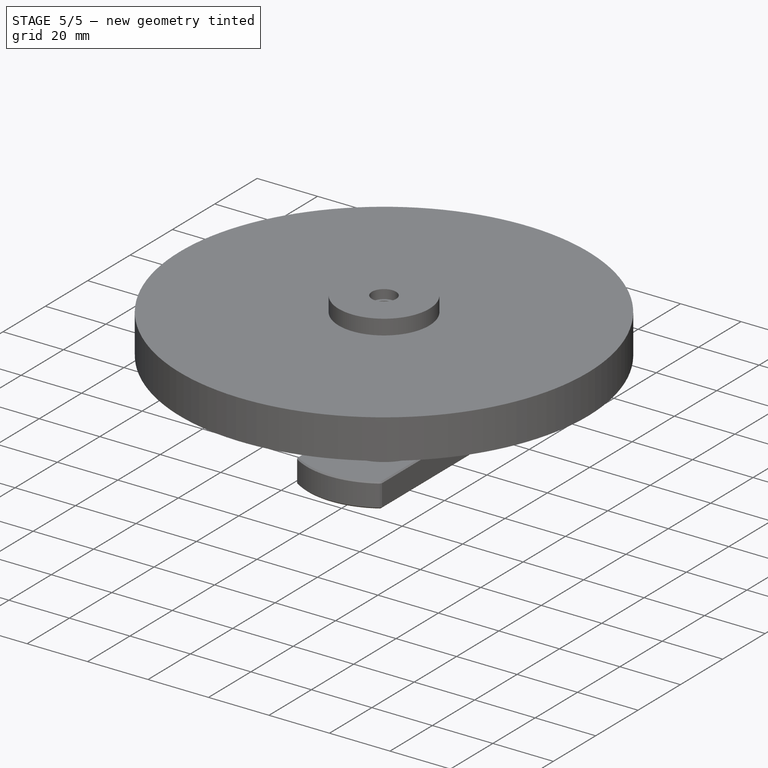
[diagram: stage 5 of 5 — iso view after this stage's code; geometry added in this stage tinted green]
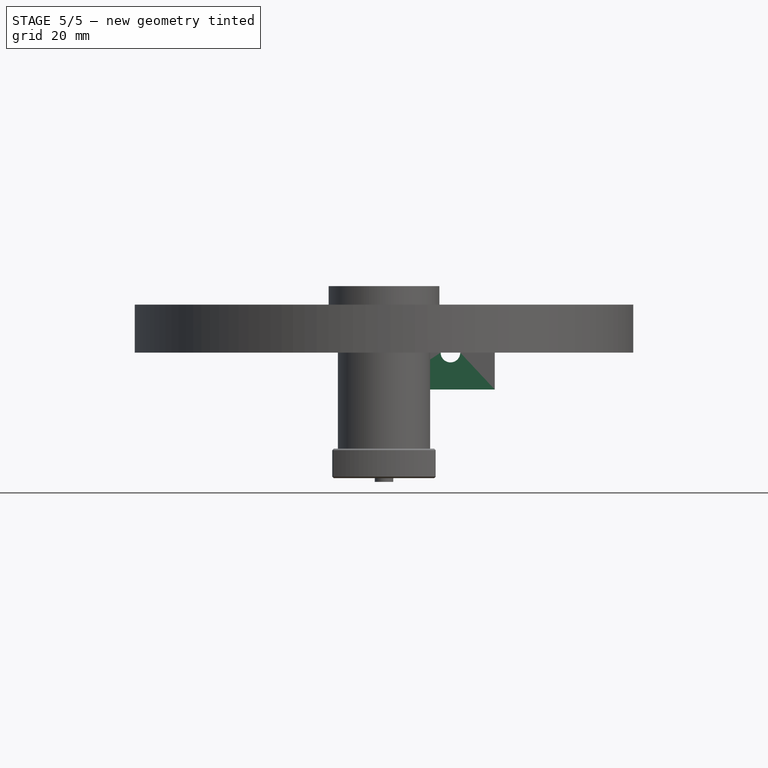
[diagram: stage 5 of 5 — front view after this stage's code; geometry added in this stage tinted green]
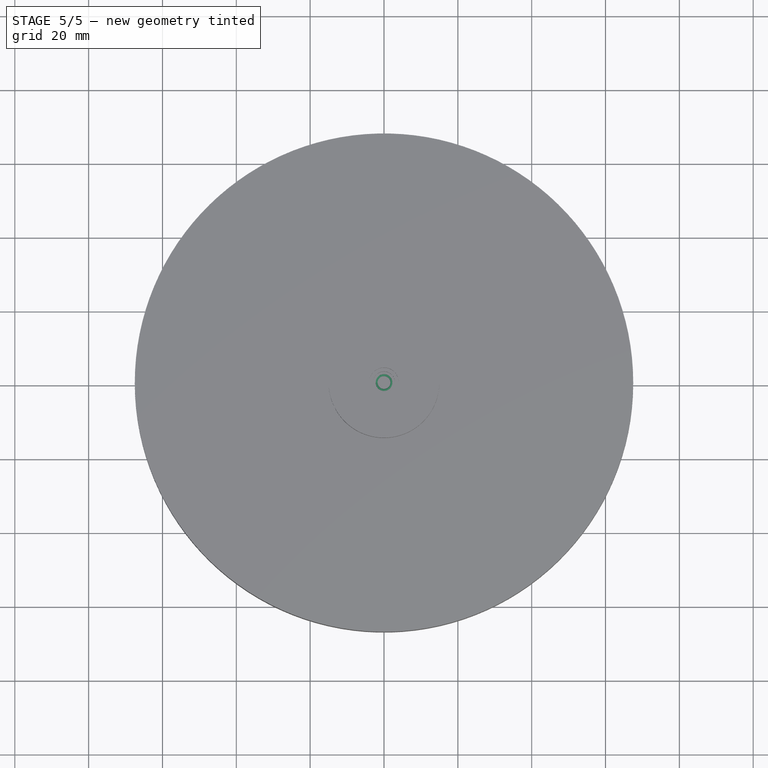
[diagram: stage 5 of 5 — top view after this stage's code; geometry added in this stage tinted green]
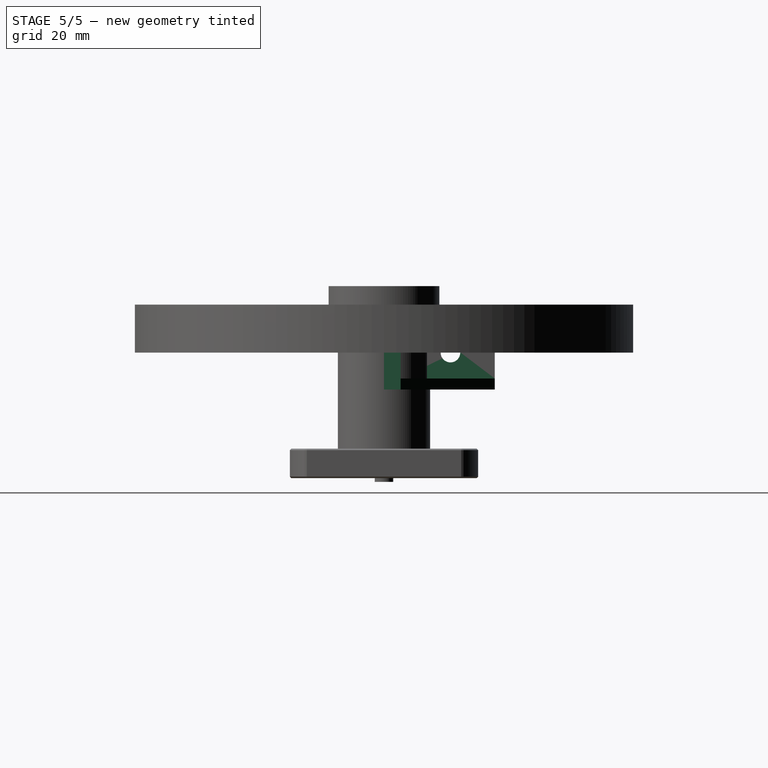
[diagram: stage 5 of 5 — right view after this stage's code; geometry added in this stage tinted green]
FEATURE [Part::Feature] Part__Feature  label="2020Bracket_Base"
  Placement = pos=(-115,-103,0) rot=(0,0,1;0rad)
  shape: bbox 30 x 30 x 20 mm, 14 faces (baked)
  expr: .Placement.Base.x = -(<<Parameters>>.bolt_x + <<Parameters>>.rail_width + 2) + 10
  expr: .Placement.Base.y = -<<Parameters>>.bolt_y + 10
FEATURE [Part::Feature] Part__Feature001  label="2020TNut_Base"
  Placement = pos=(-97,-104.2,0) rot=(-1,0,0;1.5708rad)
  shape: bbox 10 x 4.1 x 10 mm, 11 faces (baked)
  expr: .Placement.Base.x = -(<<Parameters>>.bolt_x + <<Parameters>>.rail_width + 2) + 10 + 18
  expr: .Placement.Base.y = -<<Parameters>>.bolt_y + 10 - 1.2
FEATURE [PartDesign::FeatureBase] BaseFeature001  label="BaseFeature_2020Bracket"
  BaseFeature = -> Part__Feature
FEATURE [PartDesign::CoordinateSystem] Local_CS097  label="LCS_Bracket_Corner"
  AttacherType = Attacher::AttachEngine3D
  MapMode = 5
  Support = -> [XY_Plane052]
FEATURE [PartDesign::CoordinateSystem] Local_CS098  label="LCS_Bracket_Hole1"
  AttacherType = Attacher::AttachEngine3D
  MapMode = 11
  Placement = pos=(4.5,18,1.8e-15) rot=(0.57735,0.57735,0.57735;2.0944rad)
  Support = -> [BaseFeature001]
FEATURE [PartDesign::CoordinateSystem] Local_CS099  label="LCS_Bracket_Hole2"
  AttacherType = Attacher::AttachEngine3D
  MapMode = 11
  Placement = pos=(18,4.5,1.2e-15) rot=(-0.57735,0.57735,0.57735;2.0944rad)
  Support = -> [BaseFeature001]
FEATURE [PartDesign::FeatureBase] BaseFeature002  label="BaseFeature_2020TNut"
  BaseFeature = -> Part__Feature001
FEATURE [PartDesign::CoordinateSystem] Local_CS100  label="LCS_TNut_Hole"
  AttacherType = Attacher::AttachEngine3D
  AttachmentOffset = pos=(0,0,1.2) rot=(0,0,1;0rad)
  MapMode = 11
  Placement = pos=(-9e-16,8e-16,1.2) rot=(0,0,1;3.14159rad)
  Support = -> [BaseFeature002]
FEATURE [PartDesign::Body] Body039  label="2020TNut"
  BaseFeature = -> Part__Feature001
  Group = -> [BaseFeature002,Local_CS100]
  Origin = -> Origin053
  Tip = -> BaseFeature002
FEATURE [PartDesign::CoordinateSystem] Local_CS108  label="LCS_Bracket_Side1"
  AttacherType = Attacher::AttachEngine3D
  MapMode = 11
  Placement = pos=(2e-16,18,4e-16) rot=(0.57735,0.57735,0.57735;2.0944rad)
  Support = -> [BaseFeature001]
FEATURE [PartDesign::CoordinateSystem] Local_CS109  label="LCS_Bracket_Side2"
  AttacherType = Attacher::AttachEngine3D
  AttachmentOffset = pos=(0,0,0) rot=(0,0,1;1.5708rad)
  MapMode = 11
  Placement = pos=(18,0,2e-16) rot=(0,0.707107,0.707107;3.14159rad)
  Support = -> [BaseFeature001]
FEATURE [PartDesign::Body] Body038  label="2020Bracket"
  BaseFeature = -> Part__Feature
  Group = -> [BaseFeature001,Local_CS097,Local_CS098,Local_CS099,Local_CS108,Local_CS109]
  Origin = -> Origin052
  Tip = -> BaseFeature001
FEATURE [Part::Feature] Part__Feature002  label="623Bearing_Base"
  shape: bbox 10 x 10 x 4 mm, 23 faces, 9 solids (baked)
FEATURE [Part::Feature] Part__Feature003  label="CollSpring_Base"
  shape: bbox 11.12 x 11.13 x 16.04 mm, 6 faces (baked)
FEATURE [PartDesign::CoordinateSystem] Local_CS191  label="LCS_CollSpring_Bottom"
  AttacherType = Attacher::AttachEngine3D
  MapMode = 2
  Support = -> [XY_Plane063]
FEATURE [PartDesign::FeatureBase] BaseFeature  label="BaseFeature_CollSpring"
  BaseFeature = -> Part__Feature003
FEATURE [PartDesign::Body] Body022010  label="CollSpring"
  BaseFeature = -> Part__Feature003
  Group = -> [BaseFeature,Local_CS191]
  Origin = -> Origin063
  Tip = -> BaseFeature
FEATURE [Part::Feature] Part__Feature004  label="SecSpring_Base"
  shape: bbox 4.579 x 4.58 x 15.55 mm, 6 faces (baked)
FEATURE [PartDesign::FeatureBase] BaseFeature003  label="BaseFeature_SecSpring"
  BaseFeature = -> Part__Feature004
FEATURE [PartDesign::CoordinateSystem] Local_CS192  label="LCS_SecSpring_Bottom"
  AttacherType = Attacher::AttachEngine3D
  MapMode = 2
  Support = -> [XY_Plane064]
FEATURE [PartDesign::Body] Body022011  label="SecSpring"
  BaseFeature = -> Part__Feature004
  Group = -> [BaseFeature003,Local_CS192]
  Origin = -> Origin064
  Tip = -> BaseFeature003
FEATURE [PartDesign::FeatureBase] BaseFeature004  label="BaseFeature_623Bearing"
  BaseFeature = -> Part__Feature002
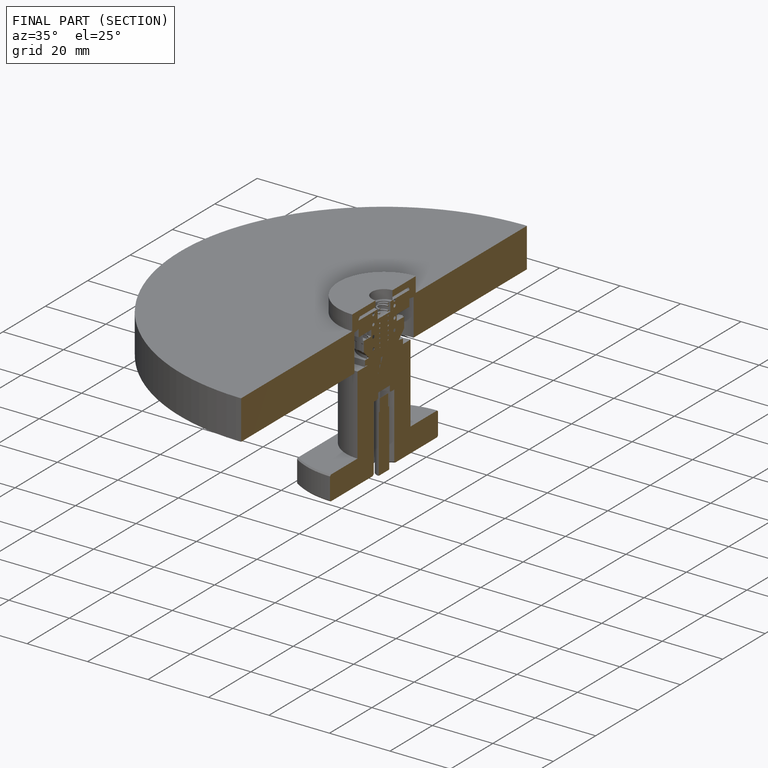
[diagram: finished part — half-section view (interior)]
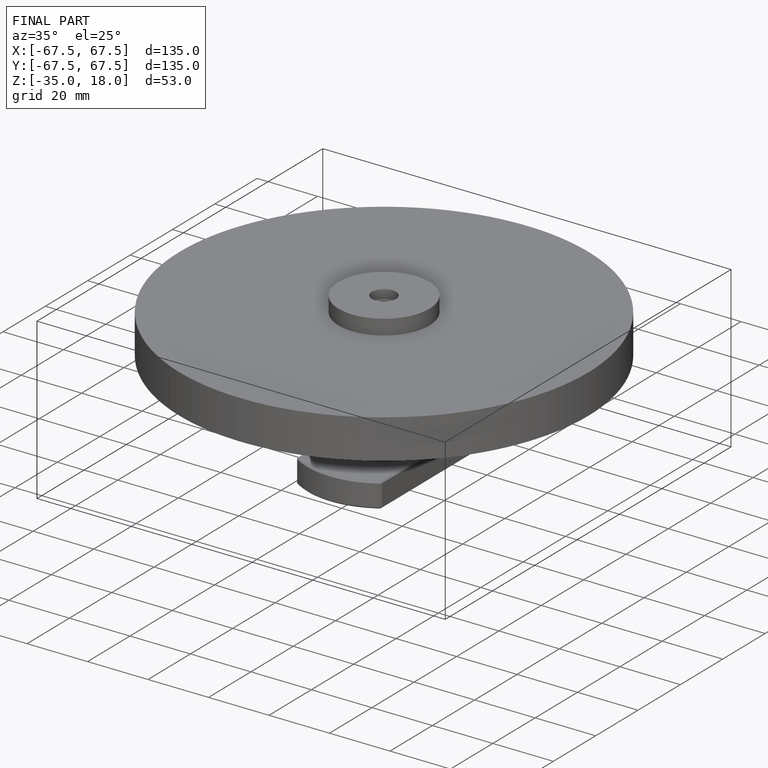
[diagram: finished part — iso view with bounding-box wireframe]
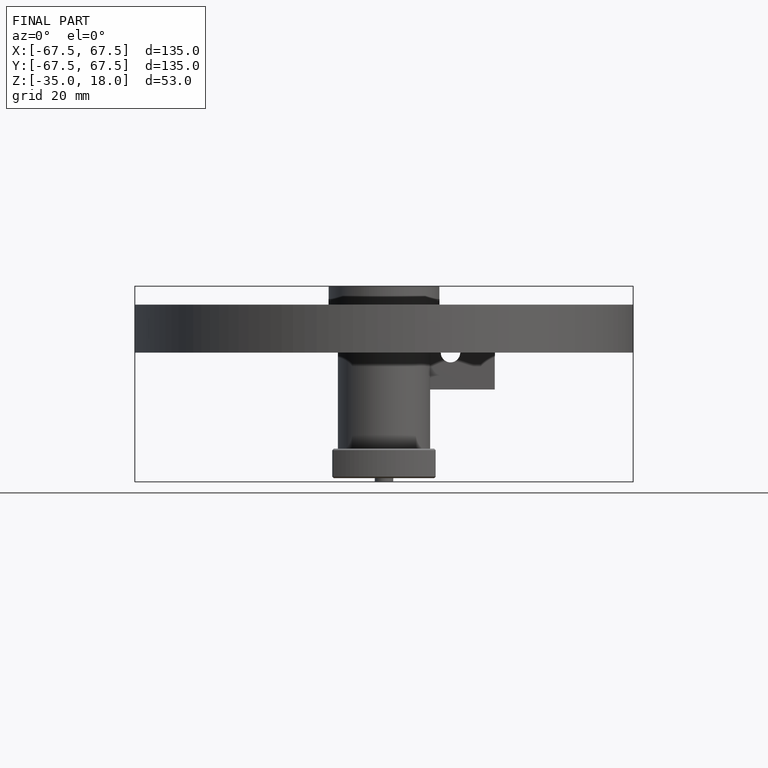
[diagram: finished part — front view with bounding-box wireframe]
